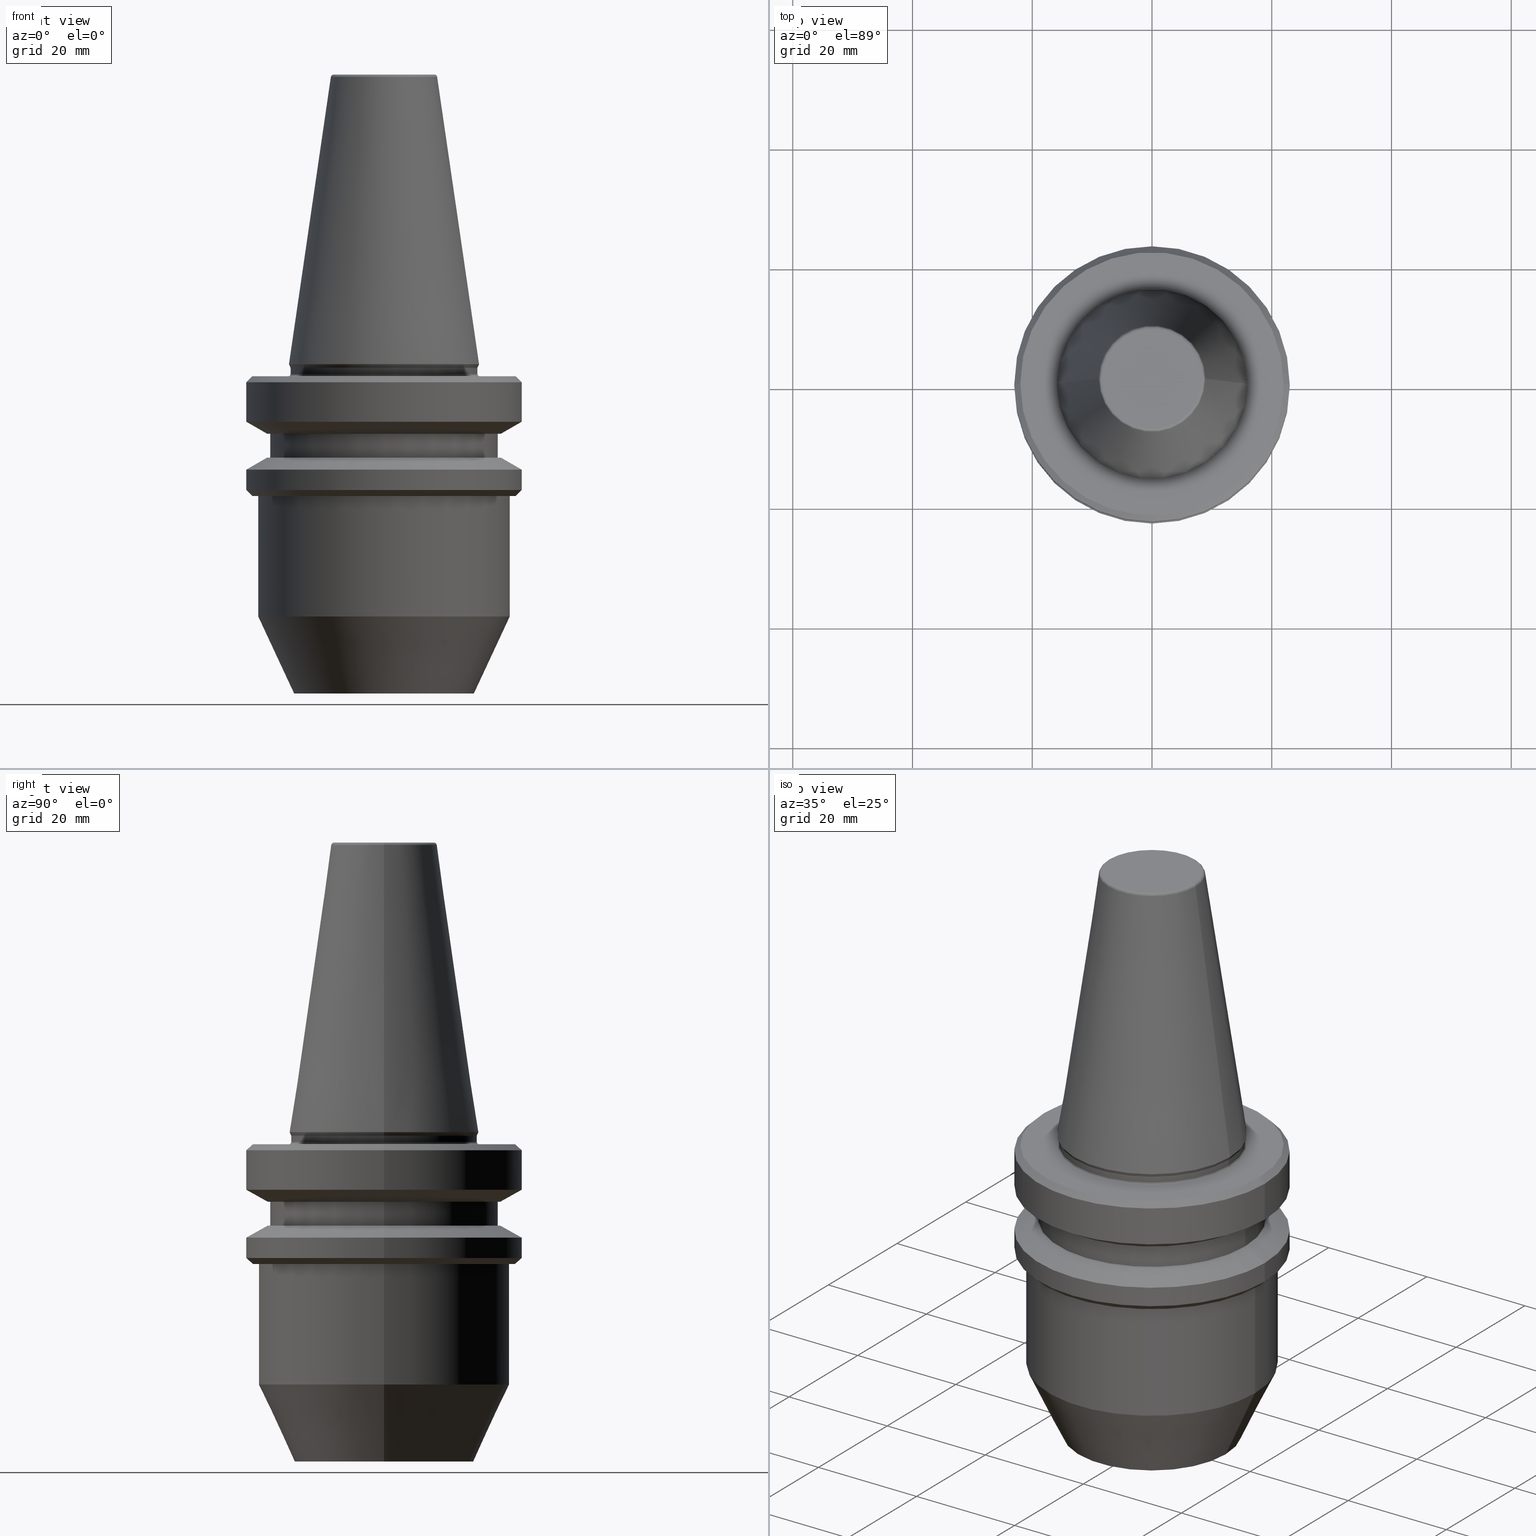
[diagram: canonical four-view strip — front | top / right | iso, engineering-drawing reading convention]
A machine part, canonical four-view strip (front | top / right | iso — engineering-drawing reading convention). The complete STEP part file that produces these views, byte-faithful:
ISO-10303-21;
HEADER;
FILE_DESCRIPTION (( 'STEP AP203' ),
    '1' );
FILE_NAME ('BT30 WE12 055 AD-6.3G15000 SL.STEP',
    '2019-05-22T04:52:18',
    ( '' ),
    ( '' ),
    'SwSTEP 2.0',
    'SolidWorks 2014',
    '' );
FILE_SCHEMA (( 'CONFIG_CONTROL_DESIGN' ));
ENDSEC;

DATA;
#1 = DIRECTION ( 'NONE',  ( -0.0000000000000000000, -0.0000000000000000000, 1.000000000000000000 ) ) ;
#2 = DIRECTION ( 'NONE',  ( 0.0000000000000000000, -0.0000000000000000000, 1.000000000000000000 ) ) ;
#3 = EDGE_LOOP ( 'NONE', ( #344, #434, #918, #743 ) ) ;
#4 = ORIENTED_EDGE ( 'NONE', *, *, #491, .T. ) ;
#5 = LINE ( 'NONE', #34, #941 ) ;
#6 = CARTESIAN_POINT ( 'NONE',  ( 0.0000000000000000000, 0.0000000000000000000, 98.56026596081761700 ) ) ;
#7 = ORIENTED_EDGE ( 'NONE', *, *, #897, .F. ) ;
#8 = CIRCLE ( 'NONE', #421, 23.00000000000085600 ) ;
#9 = CIRCLE ( 'NONE', #876, 23.00000000000002100 ) ;
#10 = DIRECTION ( 'NONE',  ( 0.0000000000000000000, 0.0000000000000000000, -1.000000000000000000 ) ) ;
#11 = AXIS2_PLACEMENT_3D ( 'NONE', #296, #156, #894 ) ;
#12 = DIRECTION ( 'NONE',  ( -0.0000000000000000000, -0.0000000000000000000, 1.000000000000000000 ) ) ;
#13 = EDGE_LOOP ( 'NONE', ( #765, #744, #426, #735 ) ) ;
#14 = CARTESIAN_POINT ( 'NONE',  ( 0.0000000000000000000, 0.0000000000000000000, 98.56026596081761700 ) ) ;
#15 = DIRECTION ( 'NONE',  ( -0.0000000000000000000, -0.0000000000000000000, 1.000000000000000000 ) ) ;
#16 = CARTESIAN_POINT ( 'NONE',  ( -15.00000000000023400, 1.836970198721058400E-015, -54.99999999999961600 ) ) ;
#17 = ADVANCED_FACE ( 'NONE', ( #447 ), #614, .T. ) ;
#18 = AXIS2_PLACEMENT_3D ( 'NONE', #787, #1, #415 ) ;
#19 = DIRECTION ( 'NONE',  ( 1.000000000000000000, 0.0000000000000000000, 0.0000000000000000000 ) ) ;
#20 = AXIS2_PLACEMENT_3D ( 'NONE', #358, #651, #613 ) ;
#21 = EDGE_LOOP ( 'NONE', ( #236, #129, #649, #395 ) ) ;
#22 = CIRCLE ( 'NONE', #705, 19.53610161513874400 ) ;
#23 = DIRECTION ( 'NONE',  ( -0.0000000000000000000, -0.0000000000000000000, 1.000000000000000000 ) ) ;
#24 = AXIS2_PLACEMENT_3D ( 'NONE', #519, #587, #826 ) ;
#25 = ADVANCED_FACE ( 'NONE', ( #637 ), #54, .T. ) ;
#26 = TOROIDAL_SURFACE ( 'NONE', #437, 8.384228427309292200, 0.5000000000004124500 ) ;
#27 = LINE ( 'NONE', #394, #592 ) ;
#28 = ORIENTED_EDGE ( 'NONE', *, *, #416, .F. ) ;
#29 = ADVANCED_FACE ( 'NONE', ( #851 ), #225, .T. ) ;
#30 = DIRECTION ( 'NONE',  ( -1.000000000000000000, 0.0000000000000000000, 0.0000000000000000000 ) ) ;
#31 = DIRECTION ( 'NONE',  ( 0.0000000000000000000, 0.0000000000000000000, -1.000000000000000000 ) ) ;
#32 = CARTESIAN_POINT ( 'NONE',  ( 0.0000000000000000000, 0.0000000000000000000, -1.249000902703301100E-013 ) ) ;
#33 = CYLINDRICAL_SURFACE ( 'NONE', #945, 15.60000000000083300 ) ;
#34 = CARTESIAN_POINT ( 'NONE',  ( 23.00000000000085600, 0.0000000000000000000, 98.56026596081761700 ) ) ;
#35 = CARTESIAN_POINT ( 'NONE',  ( 0.0000000000000000000, 0.0000000000000000000, 98.56026596081761700 ) ) ;
#36 = ORIENTED_EDGE ( 'NONE', *, *, #403, .T. ) ;
#37 = DIRECTION ( 'NONE',  ( 1.000000000000000000, 0.0000000000000000000, 0.0000000000000000000 ) ) ;
#38 = EDGE_CURVE ( 'NONE', #360, #454, #417, .T. ) ;
#39 = AXIS2_PLACEMENT_3D ( 'NONE', #890, #295, #84 ) ;
#40 = CARTESIAN_POINT ( 'NONE',  ( 0.0000000000000000000, 0.0000000000000000000, -42.13295847694266200 ) ) ;
#41 = DIRECTION ( 'NONE',  ( -0.0000000000000000000, -0.0000000000000000000, 1.000000000000000000 ) ) ;
#42 = EDGE_LOOP ( 'NONE', ( #66, #813, #332, #101 ) ) ;
#43 = EDGE_LOOP ( 'NONE', ( #855, #861, #484, #28 ) ) ;
#44 = FACE_BOUND ( 'NONE', #584, .T. ) ;
#45 = DIRECTION ( 'NONE',  ( 1.000000000000000000, 0.0000000000000000000, 0.0000000000000000000 ) ) ;
#46 = ORIENTED_EDGE ( 'NONE', *, *, #549, .T. ) ;
#47 = VERTEX_POINT ( 'NONE', #563 ) ;
#48 = AXIS2_PLACEMENT_3D ( 'NONE', #834, #595, #363 ) ;
#49 = VECTOR ( 'NONE', #302, 1000.000000000000000 ) ;
#50 = CARTESIAN_POINT ( 'NONE',  ( 0.0000000000000000000, 0.0000000000000000000, -0.5897394031394442800 ) ) ;
#51 = DATE_AND_TIME ( #248, #436 ) ;
#52 = EDGE_CURVE ( 'NONE', #544, #683, #250, .T. ) ;
#53 = APPROVAL ( #782, 'UNSPECIFIED' ) ;
#54 = TOROIDAL_SURFACE ( 'NONE', #11, 8.384228427309292200, 0.5000000000004124500 ) ;
#55 = FACE_OUTER_BOUND ( 'NONE', #3, .T. ) ;
#56 = AXIS2_PLACEMENT_3D ( 'NONE', #560, #581, #882 ) ;
#57 = VECTOR ( 'NONE', #678, 1000.000000000000000 ) ;
#58 = EDGE_LOOP ( 'NONE', ( #200, #258, #72, #739 ) ) ;
#59 = CARTESIAN_POINT ( 'NONE',  ( 0.0000000000000000000, 0.0000000000000000000, -22.00000000000062900 ) ) ;
#60 = DIRECTION ( 'NONE',  ( 1.000000000000000000, 0.0000000000000000000, 0.0000000000000000000 ) ) ;
#61 = AXIS2_PLACEMENT_3D ( 'NONE', #752, #470, #810 ) ;
#62 = FACE_OUTER_BOUND ( 'NONE', #529, .T. ) ;
#63 = EDGE_CURVE ( 'NONE', #47, #494, #252, .T. ) ;
#64 = APPROVAL_ROLE ( '' ) ;
#65 = VERTEX_POINT ( 'NONE', #226 ) ;
#66 = ORIENTED_EDGE ( 'NONE', *, *, #549, .F. ) ;
#67 = AXIS2_PLACEMENT_3D ( 'NONE', #40, #659, #949 ) ;
#68 = CIRCLE ( 'NONE', #83, 21.00000000000001800 ) ;
#69 = ADVANCED_BREP_SHAPE_REPRESENTATION ( 'BT30 WE12 055 AD-6.3G15000 SL', ( #359, #238 ), #623 ) ;
#70 = DIRECTION ( 'NONE',  ( 1.000000000000000000, 0.0000000000000000000, 0.0000000000000000000 ) ) ;
#71 = ORIENTED_EDGE ( 'NONE', *, *, #63, .F. ) ;
#72 = ORIENTED_EDGE ( 'NONE', *, *, #605, .T. ) ;
#73 = AXIS2_PLACEMENT_3D ( 'NONE', #260, #638, #723 ) ;
#74 = APPROVAL_DATE_TIME ( #271, #152 ) ;
#75 = FACE_OUTER_BOUND ( 'NONE', #704, .T. ) ;
#76 = ORIENTED_EDGE ( 'NONE', *, *, #728, .F. ) ;
#77 = CIRCLE ( 'NONE', #885, 19.00000000000023800 ) ;
#78 = CC_DESIGN_PERSON_AND_ORGANIZATION_ASSIGNMENT ( #921, #211, ( #205 ) ) ;
#79 = DIRECTION ( 'NONE',  ( -0.8660254037844393700, 1.060575238724907800E-016, 0.4999999999999985000 ) ) ;
#80 = AXIS2_PLACEMENT_3D ( 'NONE', #687, #582, #532 ) ;
#81 = CARTESIAN_POINT ( 'NONE',  ( 0.0000000000000000000, 0.0000000000000000000, 98.56026596081761700 ) ) ;
#82 = FACE_OUTER_BOUND ( 'NONE', #886, .T. ) ;
#83 = AXIS2_PLACEMENT_3D ( 'NONE', #59, #450, #309 ) ;
#84 = DIRECTION ( 'NONE',  ( 1.000000000000000000, 0.0000000000000000000, 0.0000000000000000000 ) ) ;
#85 = VERTEX_POINT ( 'NONE', #525 ) ;
#86 = VERTEX_POINT ( 'NONE', #776 ) ;
#87 = ORIENTED_EDGE ( 'NONE', *, *, #799, .T. ) ;
#88 = CARTESIAN_POINT ( 'NONE',  ( 8.384228427309182100, 0.0000000000000000000, 48.40000000000002000 ) ) ;
#89 = CARTESIAN_POINT ( 'NONE',  ( 0.0000000000000000000, 0.0000000000000000000, -0.5897394031394442800 ) ) ;
#90 = FACE_OUTER_BOUND ( 'NONE', #492, .T. ) ;
#91 = AXIS2_PLACEMENT_3D ( 'NONE', #145, #262, #486 ) ;
#92 = ORIENTED_EDGE ( 'NONE', *, *, #781, .T. ) ;
#93 = ADVANCED_FACE ( 'NONE', ( #442 ), #794, .T. ) ;
#94 = CARTESIAN_POINT ( 'NONE',  ( 8.878994820584161100, 1.515745026156934700E-015, 47.97215411344124200 ) ) ;
#95 = APPROVAL_PERSON_ORGANIZATION ( #297, #152, #438 ) ;
#96 = AXIS2_PLACEMENT_3D ( 'NONE', #672, #218, #507 ) ;
#97 = DIRECTION ( 'NONE',  ( 1.000000000000000000, 0.0000000000000000000, 0.0000000000000000000 ) ) ;
#98 = CIRCLE ( 'NONE', #505, 15.87500000000011500 ) ;
#99 = CARTESIAN_POINT ( 'NONE',  ( -15.60000000000068500, 1.934941942652894900E-015, -1.599999999999934800 ) ) ;
#100 = ADVANCED_FACE ( 'NONE', ( #640 ), #617, .T. ) ;
#101 = ORIENTED_EDGE ( 'NONE', *, *, #355, .F. ) ;
#102 = CYLINDRICAL_SURFACE ( 'NONE', #726, 23.00000000000002100 ) ;
#103 = CARTESIAN_POINT ( 'NONE',  ( -19.53610161513874400, 0.0000000000000000000, -15.60000000000012800 ) ) ;
#104 = EDGE_CURVE ( 'NONE', #531, #357, #419, .T. ) ;
#105 = DIRECTION ( 'NONE',  ( 1.000000000000000000, 0.0000000000000000000, 0.0000000000000000000 ) ) ;
#106 = AXIS2_PLACEMENT_3D ( 'NONE', #818, #508, #128 ) ;
#107 = DIRECTION ( 'NONE',  ( -0.0000000000000000000, -0.0000000000000000000, 1.000000000000000000 ) ) ;
#108 = CARTESIAN_POINT ( 'NONE',  ( -15.00000000000023400, 2.204364238465251200E-015, -54.99999999999961600 ) ) ;
#109 = CIRCLE ( 'NONE', #888, 0.5000000000004098900 ) ;
#110 = COORDINATED_UNIVERSAL_TIME_OFFSET ( 5, 30, .AHEAD. ) ;
#111 = AXIS2_PLACEMENT_3D ( 'NONE', #124, #279, #521 ) ;
#112 = DIRECTION ( 'NONE',  ( 0.8660254037844389300, 1.060575238724907300E-016, -0.4999999999999995000 ) ) ;
#113 = CARTESIAN_POINT ( 'NONE',  ( 15.60000000000083300, 0.0000000000000000000, 98.56026596081761700 ) ) ;
#114 = ORIENTED_EDGE ( 'NONE', *, *, #807, .T. ) ;
#115 = ORIENTED_EDGE ( 'NONE', *, *, #192, .T. ) ;
#116 = ORIENTED_EDGE ( 'NONE', *, *, #192, .F. ) ;
#117 = CARTESIAN_POINT ( 'NONE',  ( 0.0000000000000000000, 0.0000000000000000000, 98.56026596081761700 ) ) ;
#118 = CONICAL_SURFACE ( 'NONE', #516, 15.87500000000011500, 0.1448138461595524200 ) ;
#119 = DIRECTION ( 'NONE',  ( 1.000000000000000000, 0.0000000000000000000, 0.0000000000000000000 ) ) ;
#120 = APPLICATION_PROTOCOL_DEFINITION ( 'international standard', 'config_control_design', 1994, #219 ) ;
#121 = AXIS2_PLACEMENT_3D ( 'NONE', #32, #366, #182 ) ;
#122 = CIRCLE ( 'NONE', #636, 21.99999999999990800 ) ;
#123 = CC_DESIGN_APPROVAL ( #53, ( #770 ) ) ;
#124 = CARTESIAN_POINT ( 'NONE',  ( 0.0000000000000000000, 0.0000000000000000000, -17.59988266494577800 ) ) ;
#125 = CC_DESIGN_APPROVAL ( #786, ( #205 ) ) ;
#126 = FACE_OUTER_BOUND ( 'NONE', #42, .T. ) ;
#127 = ORIENTED_EDGE ( 'NONE', *, *, #562, .F. ) ;
#128 = DIRECTION ( 'NONE',  ( 1.000000000000000000, 0.0000000000000000000, 0.0000000000000000000 ) ) ;
#129 = ORIENTED_EDGE ( 'NONE', *, *, #763, .T. ) ;
#130 = CONICAL_SURFACE ( 'NONE', #478, 15.00000000000023400, 0.4363323129985803800 ) ;
#131 = LOCAL_TIME ( 10, 22, 18.00000000000000000, #337 ) ;
#132 = ORIENTED_EDGE ( 'NONE', *, *, #175, .T. ) ;
#133 = EDGE_CURVE ( 'NONE', #482, #455, #27, .T. ) ;
#134 = EDGE_LOOP ( 'NONE', ( #627, #158, #598, #178 ) ) ;
#135 = CARTESIAN_POINT ( 'NONE',  ( -21.00000000000001800, 2.571758278209444000E-015, 98.56026596081761700 ) ) ;
#136 = VERTEX_POINT ( 'NONE', #280 ) ;
#137 = VERTEX_POINT ( 'NONE', #88 ) ;
#138 = DIRECTION ( 'NONE',  ( -0.0000000000000000000, -0.0000000000000000000, 1.000000000000000000 ) ) ;
#139 = CARTESIAN_POINT ( 'NONE',  ( 0.0000000000000000000, 0.0000000000000000000, -11.59999999999938900 ) ) ;
#140 = PERSON_AND_ORGANIZATION_ROLE ( 'design_supplier' ) ;
#141 = CIRCLE ( 'NONE', #168, 8.878994820584161100 ) ;
#142 = PRODUCT ( 'BT30 WE12 055 AD-6.3G15000 SL', 'BT30 WE12 055 AD-6.3G15000 SL', '', ( #666 ) ) ;
#143 = DIRECTION ( 'NONE',  ( 1.224646799147353200E-016, 1.000000000000000000, 0.0000000000000000000 ) ) ;
#144 = VERTEX_POINT ( 'NONE', #779 ) ;
#145 = CARTESIAN_POINT ( 'NONE',  ( 0.0000000000000000000, 0.0000000000000000000, -11.59999999999938900 ) ) ;
#146 = DIRECTION ( 'NONE',  ( -0.0000000000000000000, -0.0000000000000000000, 1.000000000000000000 ) ) ;
#147 = EDGE_LOOP ( 'NONE', ( #71, #504, #87, #939 ) ) ;
#148 = CARTESIAN_POINT ( 'NONE',  ( 0.0000000000000000000, 19.53610161513941200, -11.59999999999938900 ) ) ;
#149 = CC_DESIGN_DATE_AND_TIME_ASSIGNMENT ( #699, #305, ( #770 ) ) ;
#150 = CARTESIAN_POINT ( 'NONE',  ( 0.0000000000000000000, 0.0000000000000000000, -3.000000000000113700 ) ) ;
#151 = LINE ( 'NONE', #706, #524 ) ;
#152 = APPROVAL ( #874, 'UNSPECIFIED' ) ;
#153 = APPROVAL_DATE_TIME ( #356, #786 ) ;
#154 = ORIENTED_EDGE ( 'NONE', *, *, #104, .T. ) ;
#155 = EDGE_CURVE ( 'NONE', #137, #865, #207, .T. ) ;
#156 = DIRECTION ( 'NONE',  ( -0.0000000000000000000, -0.0000000000000000000, 1.000000000000000000 ) ) ;
#157 = DIRECTION ( 'NONE',  ( 1.000000000000000000, 0.0000000000000000000, 0.0000000000000000000 ) ) ;
#158 = ORIENTED_EDGE ( 'NONE', *, *, #374, .T. ) ;
#159 = CARTESIAN_POINT ( 'NONE',  ( 19.00000000000023800, 0.0000000000000000000, -15.59999999999994800 ) ) ;
#160 = CARTESIAN_POINT ( 'NONE',  ( -23.00000000000002100, 2.816687638038914700E-015, -9.600117335054614300 ) ) ;
#161 = ADVANCED_FACE ( 'NONE', ( #230 ), #439, .T. ) ;
#162 = PLANE ( 'NONE',  #196 ) ;
#163 = CC_DESIGN_SECURITY_CLASSIFICATION ( #770, ( #205 ) ) ;
#164 = ORIENTED_EDGE ( 'NONE', *, *, #799, .F. ) ;
#165 = AXIS2_PLACEMENT_3D ( 'NONE', #50, #721, #545 ) ;
#166 = ORIENTED_EDGE ( 'NONE', *, *, #133, .T. ) ;
#167 = ORIENTED_EDGE ( 'NONE', *, *, #732, .T. ) ;
#168 = AXIS2_PLACEMENT_3D ( 'NONE', #829, #138, #943 ) ;
#169 = ORIENTED_EDGE ( 'NONE', *, *, #791, .F. ) ;
#170 = CARTESIAN_POINT ( 'NONE',  ( 0.0000000000000000000, 15.00000000000023400, -54.99999999999971600 ) ) ;
#171 = EDGE_LOOP ( 'NONE', ( #390, #660, #537, #240 ) ) ;
#172 = ADVANCED_FACE ( 'NONE', ( #824 ), #400, .T. ) ;
#173 = CARTESIAN_POINT ( 'NONE',  ( 0.0000000000000000000, 0.0000000000000000000, -54.99999999999961600 ) ) ;
#174 = CIRCLE ( 'NONE', #830, 19.53610161513941200 ) ;
#175 = EDGE_CURVE ( 'NONE', #494, #144, #9, .T. ) ;
#176 = DIRECTION ( 'NONE',  ( -0.0000000000000000000, -0.0000000000000000000, 1.000000000000000000 ) ) ;
#177 = AXIS2_PLACEMENT_3D ( 'NONE', #180, #840, #381 ) ;
#178 = ORIENTED_EDGE ( 'NONE', *, *, #533, .F. ) ;
#179 = CARTESIAN_POINT ( 'NONE',  ( -21.99999999999990800, 0.0000000000000000000, -2.000000000000001800 ) ) ;
#180 = CARTESIAN_POINT ( 'NONE',  ( 0.0000000000000000000, 0.0000000000000000000, -1.249000902703301100E-013 ) ) ;
#181 = DIRECTION ( 'NONE',  ( 1.000000000000000000, 0.0000000000000000000, 0.0000000000000000000 ) ) ;
#182 = DIRECTION ( 'NONE',  ( 1.000000000000000000, 0.0000000000000000000, 0.0000000000000000000 ) ) ;
#183 = FACE_OUTER_BOUND ( 'NONE', #134, .T. ) ;
#184 = DIRECTION ( 'NONE',  ( 1.000000000000000000, 0.0000000000000000000, 0.0000000000000000000 ) ) ;
#185 = DIRECTION ( 'NONE',  ( -0.0000000000000000000, -0.0000000000000000000, 1.000000000000000000 ) ) ;
#186 = DIRECTION ( 'NONE',  ( -0.0000000000000000000, -0.0000000000000000000, 1.000000000000000000 ) ) ;
#187 = PRODUCT_RELATED_PRODUCT_CATEGORY ( 'detail', '', ( #142 ) ) ;
#188 = ORIENTED_EDGE ( 'NONE', *, *, #763, .F. ) ;
#189 = AXIS2_PLACEMENT_3D ( 'NONE', #481, #919, #692 ) ;
#190 = LINE ( 'NONE', #520, #382 ) ;
#191 = DIRECTION ( 'NONE',  ( 1.000000000000000000, 0.0000000000000000000, 0.0000000000000000000 ) ) ;
#192 = EDGE_CURVE ( 'NONE', #357, #683, #578, .T. ) ;
#193 = DIRECTION ( 'NONE',  ( -0.4226182617406976100, 5.175581015019636600E-017, 0.9063077870366508200 ) ) ;
#194 = CARTESIAN_POINT ( 'NONE',  ( 0.0000000000000000000, 19.53610161513874400, -15.60000000000003700 ) ) ;
#195 = DIRECTION ( 'NONE',  ( -0.0000000000000000000, -0.0000000000000000000, 1.000000000000000000 ) ) ;
#196 = AXIS2_PLACEMENT_3D ( 'NONE', #698, #386, #213 ) ;
#197 = ORIENTED_EDGE ( 'NONE', *, *, #643, .T. ) ;
#198 = ORIENTED_EDGE ( 'NONE', *, *, #317, .F. ) ;
#199 = DIRECTION ( 'NONE',  ( 0.4226182617400864300, 0.0000000000000000000, 0.9063077870369358200 ) ) ;
#200 = ORIENTED_EDGE ( 'NONE', *, *, #446, .F. ) ;
#201 = LINE ( 'NONE', #257, #610 ) ;
#202 = EDGE_LOOP ( 'NONE', ( #724, #518, #898, #915 ) ) ;
#203 = CARTESIAN_POINT ( 'NONE',  ( -22.00000000000041200, 2.755455298081622500E-015, -22.00000000000062900 ) ) ;
#204 = AXIS2_PLACEMENT_3D ( 'NONE', #89, #146, #771 ) ;
#205 = PRODUCT_DEFINITION_FORMATION_WITH_SPECIFIED_SOURCE ( 'ANY', '', #142, .NOT_KNOWN. ) ;
#206 = CIRCLE ( 'NONE', #579, 16.00000000000056800 ) ;
#207 = CIRCLE ( 'NONE', #48, 8.384228427309182100 ) ;
#208 = PERSON_AND_ORGANIZATION_ROLE ( 'creator' ) ;
#209 = EDGE_CURVE ( 'NONE', #136, #566, #857, .T. ) ;
#210 = DIRECTION ( 'NONE',  ( 1.000000000000000000, 0.0000000000000000000, 0.0000000000000000000 ) ) ;
#211 = PERSON_AND_ORGANIZATION_ROLE ( 'creator' ) ;
#212 = FACE_OUTER_BOUND ( 'NONE', #631, .T. ) ;
#213 = DIRECTION ( 'NONE',  ( 1.000000000000000000, 0.0000000000000000000, 0.0000000000000000000 ) ) ;
#214 = DIRECTION ( 'NONE',  ( -1.000000000000000000, 1.224646799147347300E-016, 0.0000000000000000000 ) ) ;
#215 = ORIENTED_EDGE ( 'NONE', *, *, #475, .T. ) ;
#216 = PLANE ( 'NONE',  #96 ) ;
#217 = AXIS2_PLACEMENT_3D ( 'NONE', #170, #2, #571 ) ;
#218 = DIRECTION ( 'NONE',  ( 0.0000000000000000000, 0.0000000000000000000, -1.000000000000000000 ) ) ;
#219 = APPLICATION_CONTEXT ( 'configuration controlled 3d designs of mechanical parts and assemblies' ) ;
#220 = DIRECTION ( 'NONE',  ( -0.0000000000000000000, -0.0000000000000000000, 1.000000000000000000 ) ) ;
#221 = CC_DESIGN_PERSON_AND_ORGANIZATION_ASSIGNMENT ( #847, #208, ( #445 ) ) ;
#222 = ORIENTED_EDGE ( 'NONE', *, *, #568, .F. ) ;
#223 = VECTOR ( 'NONE', #452, 1000.000000000000000 ) ;
#224 = DIRECTION ( 'NONE',  ( -0.0000000000000000000, -0.0000000000000000000, 1.000000000000000000 ) ) ;
#225 = CYLINDRICAL_SURFACE ( 'NONE', #350, 23.00000000000085600 ) ;
#226 = CARTESIAN_POINT ( 'NONE',  ( -19.00000000000023800, 2.326828918380000200E-015, -15.59999999999994800 ) ) ;
#227 = DIRECTION ( 'NONE',  ( 1.000000000000000000, 0.0000000000000000000, 0.0000000000000000000 ) ) ;
#228 = AXIS2_PLACEMENT_3D ( 'NONE', #276, #477, #473 ) ;
#229 = CIRCLE ( 'NONE', #304, 15.00000000000023400 ) ;
#230 = FACE_OUTER_BOUND ( 'NONE', #147, .T. ) ;
#231 = ORIENTED_EDGE ( 'NONE', *, *, #670, .F. ) ;
#232 = CARTESIAN_POINT ( 'NONE',  ( 0.0000000000000000000, 0.0000000000000000000, -22.00000000000062900 ) ) ;
#233 =( LENGTH_UNIT ( ) NAMED_UNIT ( * ) SI_UNIT ( .MILLI., .METRE. ) );
#234 = AXIS2_PLACEMENT_3D ( 'NONE', #502, #325, #256 ) ;
#235 = FACE_OUTER_BOUND ( 'NONE', #43, .T. ) ;
#236 = ORIENTED_EDGE ( 'NONE', *, *, #702, .T. ) ;
#237 = CARTESIAN_POINT ( 'NONE',  ( 0.0000000000000000000, 0.0000000000000000000, -15.59999999999994800 ) ) ;
#238 = AXIS2_PLACEMENT_3D ( 'NONE', #278, #635, #346 ) ;
#239 = ADVANCED_FACE ( 'NONE', ( #448 ), #424, .T. ) ;
#240 = ORIENTED_EDGE ( 'NONE', *, *, #522, .F. ) ;
#241 = CARTESIAN_POINT ( 'NONE',  ( 15.00000000000023400, 0.0000000000000000000, -54.99999999999961600 ) ) ;
#242 = VERTEX_POINT ( 'NONE', #345 ) ;
#243 = CIRCLE ( 'NONE', #916, 15.60000000000068500 ) ;
#244 = ORIENTED_EDGE ( 'NONE', *, *, #543, .F. ) ;
#245 = EDGE_LOOP ( 'NONE', ( #727, #197, #198, #116 ) ) ;
#246 = AXIS2_PLACEMENT_3D ( 'NONE', #318, #143, #214 ) ;
#247 = CONICAL_SURFACE ( 'NONE', #264, 23.00000000000085600, 1.047197551196598300 ) ;
#248 = CALENDAR_DATE ( 2019, 22, 5 ) ;
#249 = ADVANCED_FACE ( 'NONE', ( #622 ), #281, .T. ) ;
#250 = CIRCLE ( 'NONE', #106, 21.00000000000001800 ) ;
#251 = CIRCLE ( 'NONE', #121, 15.87500000000011500 ) ;
#252 = LINE ( 'NONE', #904, #57 ) ;
#253 = AXIS2_PLACEMENT_3D ( 'NONE', #440, #853, #341 ) ;
#254 = DIRECTION ( 'NONE',  ( 1.000000000000000000, 0.0000000000000000000, 0.0000000000000000000 ) ) ;
#255 = DIRECTION ( 'NONE',  ( 0.0000000000000000000, -1.000000000000000000, 0.0000000000000000000 ) ) ;
#256 = DIRECTION ( 'NONE',  ( 1.000000000000000000, 0.0000000000000000000, 0.0000000000000000000 ) ) ;
#257 = CARTESIAN_POINT ( 'NONE',  ( -15.60000000000097800, 1.910449006669990400E-015, -0.5897394031394442800 ) ) ;
#258 = ORIENTED_EDGE ( 'NONE', *, *, #761, .T. ) ;
#259 = CIRCLE ( 'NONE', #443, 19.53610161513874400 ) ;
#260 = CARTESIAN_POINT ( 'NONE',  ( 0.0000000000000000000, 0.0000000000000000000, -22.00000000000062900 ) ) ;
#261 = ORIENTED_EDGE ( 'NONE', *, *, #791, .T. ) ;
#262 = DIRECTION ( 'NONE',  ( -0.0000000000000000000, -0.0000000000000000000, 1.000000000000000000 ) ) ;
#263 = ORIENTED_EDGE ( 'NONE', *, *, #807, .F. ) ;
#264 = AXIS2_PLACEMENT_3D ( 'NONE', #327, #384, #30 ) ;
#265 = CONICAL_SURFACE ( 'NONE', #383, 15.00000000000023400, 0.4363323129985803800 ) ;
#266 = ORIENTED_EDGE ( 'NONE', *, *, #788, .T. ) ;
#267 = ADVANCED_FACE ( 'NONE', ( #82 ), #33, .T. ) ;
#268 = ORIENTED_EDGE ( 'NONE', *, *, #710, .F. ) ;
#269 = CARTESIAN_POINT ( 'NONE',  ( 0.0000000000000000000, 0.0000000000000000000, -17.59988266494577800 ) ) ;
#270 = CARTESIAN_POINT ( 'NONE',  ( 0.0000000000000000000, 0.0000000000000000000, -11.59999999999938900 ) ) ;
#271 = DATE_AND_TIME ( #463, #656 ) ;
#272 = CONICAL_SURFACE ( 'NONE', #860, 23.00000000000002100, 0.7853981633974482800 ) ;
#273 = AXIS2_PLACEMENT_3D ( 'NONE', #734, #369, #97 ) ;
#274 = ORIENTED_EDGE ( 'NONE', *, *, #864, .F. ) ;
#275 = CIRCLE ( 'NONE', #551, 23.00000000000085600 ) ;
#276 = CARTESIAN_POINT ( 'NONE',  ( 0.0000000000000000000, 0.0000000000000000000, -21.00000000000018500 ) ) ;
#277 = DIRECTION ( 'NONE',  ( 1.000000000000000000, 0.0000000000000000000, 0.0000000000000000000 ) ) ;
#278 = CARTESIAN_POINT ( 'NONE',  ( 0.0000000000000000000, 0.0000000000000000000, 0.0000000000000000000 ) ) ;
#279 = DIRECTION ( 'NONE',  ( -0.0000000000000000000, -0.0000000000000000000, 1.000000000000000000 ) ) ;
#280 = CARTESIAN_POINT ( 'NONE',  ( 22.00000000000041200, 0.0000000000000000000, -22.00000000000062900 ) ) ;
#281 = CYLINDRICAL_SURFACE ( 'NONE', #39, 15.60000000000083300 ) ;
#282 = APPROVAL_DATE_TIME ( #476, #53 ) ;
#283 = CC_DESIGN_PERSON_AND_ORGANIZATION_ASSIGNMENT ( #487, #396, ( #142 ) ) ;
#284 = DIRECTION ( 'NONE',  ( -1.000000000000000000, 0.0000000000000000000, 0.0000000000000000000 ) ) ;
#285 = EDGE_CURVE ( 'NONE', #367, #884, #259, .T. ) ;
#286 = VERTEX_POINT ( 'NONE', #815 ) ;
#287 = DIRECTION ( 'NONE',  ( -0.0000000000000000000, -0.0000000000000000000, 1.000000000000000000 ) ) ;
#288 = VERTEX_POINT ( 'NONE', #179 ) ;
#289 = ORIENTED_EDGE ( 'NONE', *, *, #562, .T. ) ;
#290 = CIRCLE ( 'NONE', #228, 23.00000000000085600 ) ;
#291 = DIRECTION ( 'NONE',  ( 1.000000000000000000, 0.0000000000000000000, 0.0000000000000000000 ) ) ;
#292 = ORIENTED_EDGE ( 'NONE', *, *, #820, .T. ) ;
#293 = AXIS2_PLACEMENT_3D ( 'NONE', #828, #612, #488 ) ;
#294 = PLANE ( 'NONE',  #875 ) ;
#295 = DIRECTION ( 'NONE',  ( -0.0000000000000000000, -0.0000000000000000000, 1.000000000000000000 ) ) ;
#296 = CARTESIAN_POINT ( 'NONE',  ( 0.0000000000000000000, 0.0000000000000000000, 47.89999999999960800 ) ) ;
#297 = PERSON_AND_ORGANIZATION ( #646, #685 ) ;
#298 = LINE ( 'NONE', #602, #657 ) ;
#299 = EDGE_LOOP ( 'NONE', ( #333, #789 ) ) ;
#300 = FACE_OUTER_BOUND ( 'NONE', #202, .T. ) ;
#301 = CARTESIAN_POINT ( 'NONE',  ( 0.0000000000000000000, 0.0000000000000000000, -2.000000000000001800 ) ) ;
#302 = DIRECTION ( 'NONE',  ( -0.0000000000000000000, -0.0000000000000000000, 1.000000000000000000 ) ) ;
#303 = DIRECTION ( 'NONE',  ( 0.0000000000000000000, 0.0000000000000000000, -1.000000000000000000 ) ) ;
#304 = AXIS2_PLACEMENT_3D ( 'NONE', #173, #609, #119 ) ;
#305 = DATE_TIME_ROLE ( 'classification_date' ) ;
#306 = FACE_OUTER_BOUND ( 'NONE', #737, .T. ) ;
#307 = DIRECTION ( 'NONE',  ( -0.0000000000000000000, -0.0000000000000000000, 1.000000000000000000 ) ) ;
#308 = APPROVAL_PERSON_ORGANIZATION ( #501, #53, #641 ) ;
#309 = DIRECTION ( 'NONE',  ( 1.000000000000000000, 0.0000000000000000000, 0.0000000000000000000 ) ) ;
#310 = CC_DESIGN_DATE_AND_TIME_ASSIGNMENT ( #51, #621, ( #445 ) ) ;
#311 = DIRECTION ( 'NONE',  ( -0.0000000000000000000, -0.0000000000000000000, 1.000000000000000000 ) ) ;
#312 = ORIENTED_EDGE ( 'NONE', *, *, #817, .T. ) ;
#313 = DIRECTION ( 'NONE',  ( -0.0000000000000000000, -0.0000000000000000000, 1.000000000000000000 ) ) ;
#314 = ORIENTED_EDGE ( 'NONE', *, *, #663, .F. ) ;
#315 = DIRECTION ( 'NONE',  ( -1.000000000000000000, 0.0000000000000000000, -0.0000000000000000000 ) ) ;
#316 = FACE_OUTER_BOUND ( 'NONE', #245, .T. ) ;
#317 = EDGE_CURVE ( 'NONE', #683, #544, #832, .T. ) ;
#318 = CARTESIAN_POINT ( 'NONE',  ( -16.00000000000056800, 1.959434878635834900E-015, -1.599999999999823800 ) ) ;
#319 = ADVANCED_FACE ( 'NONE', ( #235 ), #777, .T. ) ;
#320 = CARTESIAN_POINT ( 'NONE',  ( 15.87500000000011500, 0.0000000000000000000, -1.249000902703301100E-013 ) ) ;
#321 = CC_DESIGN_PERSON_AND_ORGANIZATION_ASSIGNMENT ( #722, #140, ( #205 ) ) ;
#322 = DIRECTION ( 'NONE',  ( 1.000000000000000000, 0.0000000000000000000, 0.0000000000000000000 ) ) ;
#323 = DIRECTION ( 'NONE',  ( -0.0000000000000000000, -0.0000000000000000000, 1.000000000000000000 ) ) ;
#324 = CIRCLE ( 'NONE', #647, 8.384228427309182100 ) ;
#325 = DIRECTION ( 'NONE',  ( -0.0000000000000000000, -0.0000000000000000000, 1.000000000000000000 ) ) ;
#326 = CARTESIAN_POINT ( 'NONE',  ( 21.00000000000001800, 0.0000000000000000000, -22.00000000000062900 ) ) ;
#327 = CARTESIAN_POINT ( 'NONE',  ( 0.0000000000000000000, 0.0000000000000000000, -17.59988266494577800 ) ) ;
#328 = CIRCLE ( 'NONE', #273, 21.00000000000001800 ) ;
#329 = DIRECTION ( 'NONE',  ( -0.0000000000000000000, -0.0000000000000000000, 1.000000000000000000 ) ) ;
#330 = AXIS2_PLACEMENT_3D ( 'NONE', #353, #854, #210 ) ;
#331 = ORIENTED_EDGE ( 'NONE', *, *, #742, .T. ) ;
#332 = ORIENTED_EDGE ( 'NONE', *, *, #547, .T. ) ;
#333 = ORIENTED_EDGE ( 'NONE', *, *, #155, .T. ) ;
#334 = CIRCLE ( 'NONE', #731, 19.00000000000023800 ) ;
#335 = ADVANCED_FACE ( 'NONE', ( #800 ), #118, .T. ) ;
#336 = CARTESIAN_POINT ( 'NONE',  ( -15.87500000000011500, 0.0000000000000000000, -1.249000902703301100E-013 ) ) ;
#337 = COORDINATED_UNIVERSAL_TIME_OFFSET ( 5, 30, .AHEAD. ) ;
#338 = ORIENTED_EDGE ( 'NONE', *, *, #52, .F. ) ;
#339 = CARTESIAN_POINT ( 'NONE',  ( -21.00000000000001800, 2.571758278209444000E-015, -22.00000000000062900 ) ) ;
#340 = CARTESIAN_POINT ( 'NONE',  ( 0.0000000000000000000, 0.0000000000000000000, -17.59988266494577800 ) ) ;
#341 = DIRECTION ( 'NONE',  ( 1.000000000000000000, 0.0000000000000000000, 0.0000000000000000000 ) ) ;
#342 = ORIENTED_EDGE ( 'NONE', *, *, #732, .F. ) ;
#343 = CARTESIAN_POINT ( 'NONE',  ( 0.0000000000000000000, 0.0000000000000000000, 47.89999999999960800 ) ) ;
#344 = ORIENTED_EDGE ( 'NONE', *, *, #446, .T. ) ;
#345 = CARTESIAN_POINT ( 'NONE',  ( -23.00000000000085600, 2.816687638039017300E-015, -21.00000000000018500 ) ) ;
#346 = DIRECTION ( 'NONE',  ( 1.000000000000000000, 0.0000000000000000000, 0.0000000000000000000 ) ) ;
#347 = ORIENTED_EDGE ( 'NONE', *, *, #423, .T. ) ;
#348 = DIRECTION ( 'NONE',  ( -0.0000000000000000000, -0.0000000000000000000, 1.000000000000000000 ) ) ;
#349 = VERTEX_POINT ( 'NONE', #658 ) ;
#350 = AXIS2_PLACEMENT_3D ( 'NONE', #81, #462, #778 ) ;
#351 = EDGE_LOOP ( 'NONE', ( #268, #7 ) ) ;
#352 = ORIENTED_EDGE ( 'NONE', *, *, #922, .F. ) ;
#353 = CARTESIAN_POINT ( 'NONE',  ( 0.0000000000000000000, 0.0000000000000000000, -9.600117335054614300 ) ) ;
#354 = FACE_OUTER_BOUND ( 'NONE', #530, .T. ) ;
#355 = EDGE_CURVE ( 'NONE', #144, #494, #597, .T. ) ;
#356 = DATE_AND_TIME ( #550, #748 ) ;
#357 = VERTEX_POINT ( 'NONE', #548 ) ;
#358 = CARTESIAN_POINT ( 'NONE',  ( -8.384228427309292200, 1.026771850682457400E-015, 47.89999999999960800 ) ) ;
#359 = MANIFOLD_SOLID_BREP ( 'Revolve1', #644 ) ;
#360 = VERTEX_POINT ( 'NONE', #736 ) ;
#361 = DIRECTION ( 'NONE',  ( -0.0000000000000000000, -0.0000000000000000000, 1.000000000000000000 ) ) ;
#362 = ORIENTED_EDGE ( 'NONE', *, *, #451, .F. ) ;
#363 = DIRECTION ( 'NONE',  ( 1.000000000000000000, 0.0000000000000000000, 0.0000000000000000000 ) ) ;
#364 = VERTEX_POINT ( 'NONE', #159 ) ;
#365 = EDGE_LOOP ( 'NONE', ( #650, #565, #907, #408 ) ) ;
#366 = DIRECTION ( 'NONE',  ( -0.0000000000000000000, -0.0000000000000000000, 1.000000000000000000 ) ) ;
#367 = VERTEX_POINT ( 'NONE', #691 ) ;
#368 = ORIENTED_EDGE ( 'NONE', *, *, #496, .T. ) ;
#369 = DIRECTION ( 'NONE',  ( -0.0000000000000000000, -0.0000000000000000000, 1.000000000000000000 ) ) ;
#370 = CARTESIAN_POINT ( 'NONE',  ( 0.0000000000000000000, 0.0000000000000000000, 98.56026596081761700 ) ) ;
#371 = CONICAL_SURFACE ( 'NONE', #676, 19.53610161513941200, 1.047197551196599400 ) ;
#372 = ADVANCED_FACE ( 'NONE', ( #62 ), #404, .F. ) ;
#373 = ORIENTED_EDGE ( 'NONE', *, *, #543, .T. ) ;
#374 = EDGE_CURVE ( 'NONE', #367, #570, #887, .T. ) ;
#375 = CARTESIAN_POINT ( 'NONE',  ( 0.0000000000000000000, 0.0000000000000000000, -3.000000000000113700 ) ) ;
#376 = DIRECTION ( 'NONE',  ( -0.8660254037844389300, 0.0000000000000000000, -0.4999999999999995000 ) ) ;
#377 = FACE_BOUND ( 'NONE', #429, .T. ) ;
#378 = CYLINDRICAL_SURFACE ( 'NONE', #679, 19.00000000000023800 ) ;
#379 = AXIS2_PLACEMENT_3D ( 'NONE', #194, #303, #315 ) ;
#380 = ADVANCED_FACE ( 'NONE', ( #316 ), #265, .T. ) ;
#381 = DIRECTION ( 'NONE',  ( -1.000000000000000000, 0.0000000000000000000, 0.0000000000000000000 ) ) ;
#382 = VECTOR ( 'NONE', #185, 1000.000000000000000 ) ;
#383 = AXIS2_PLACEMENT_3D ( 'NONE', #389, #868, #814 ) ;
#384 = DIRECTION ( 'NONE',  ( 0.0000000000000000000, 0.0000000000000000000, -1.000000000000000000 ) ) ;
#385 = ORIENTED_EDGE ( 'NONE', *, *, #491, .F. ) ;
#386 = DIRECTION ( 'NONE',  ( 0.0000000000000000000, -0.0000000000000000000, 1.000000000000000000 ) ) ;
#387 = ADVANCED_FACE ( 'NONE', ( #90 ), #681, .T. ) ;
#388 = DIRECTION ( 'NONE',  ( -0.0000000000000000000, -0.0000000000000000000, 1.000000000000000000 ) ) ;
#389 = CARTESIAN_POINT ( 'NONE',  ( 0.0000000000000000000, 0.0000000000000000000, -54.99999999999961600 ) ) ;
#390 = ORIENTED_EDGE ( 'NONE', *, *, #398, .F. ) ;
#391 = CARTESIAN_POINT ( 'NONE',  ( 0.0000000000000000000, 0.0000000000000000000, -2.000000000000001800 ) ) ;
#392 = CARTESIAN_POINT ( 'NONE',  ( -15.87500000000011500, 1.944126793646437000E-015, -1.249000902703301100E-013 ) ) ;
#393 = LINE ( 'NONE', #831, #769 ) ;
#394 = CARTESIAN_POINT ( 'NONE',  ( -19.53610161513941200, 2.392482431079791800E-015, -11.59999999999938900 ) ) ;
#395 = ORIENTED_EDGE ( 'NONE', *, *, #496, .F. ) ;
#396 = PERSON_AND_ORGANIZATION_ROLE ( 'design_owner' ) ;
#397 = VECTOR ( 'NONE', #193, 1000.000000000000000 ) ;
#398 = EDGE_CURVE ( 'NONE', #544, #523, #654, .T. ) ;
#399 = CARTESIAN_POINT ( 'NONE',  ( -21.00000000000001800, 2.571758278209443600E-015, -42.13295847694266200 ) ) ;
#400 = CYLINDRICAL_SURFACE ( 'NONE', #912, 23.00000000000002100 ) ;
#401 = ADVANCED_FACE ( 'NONE', ( #841 ), #216, .F. ) ;
#402 = ADVANCED_FACE ( 'NONE', ( #866, #431 ), #294, .F. ) ;
#403 = EDGE_CURVE ( 'NONE', #938, #523, #68, .T. ) ;
#404 = TOROIDAL_SURFACE ( 'NONE', #253, 16.00000000000056800, 0.3999999999998848400 ) ;
#405 = CARTESIAN_POINT ( 'NONE',  ( 0.0000000000000000000, 0.0000000000000000000, -11.59999999999938900 ) ) ;
#406 = EDGE_LOOP ( 'NONE', ( #762, #46, #780, #586 ) ) ;
#407 = ADVANCED_FACE ( 'NONE', ( #628 ), #378, .T. ) ;
#408 = ORIENTED_EDGE ( 'NONE', *, *, #864, .T. ) ;
#409 = CARTESIAN_POINT ( 'NONE',  ( -22.00000000000041200, 2.694222958124227300E-015, -22.00000000000062900 ) ) ;
#410 = ORIENTED_EDGE ( 'NONE', *, *, #285, .T. ) ;
#411 = DIRECTION ( 'NONE',  ( -1.000000000000000000, 0.0000000000000000000, 0.0000000000000000000 ) ) ;
#412 = ORIENTED_EDGE ( 'NONE', *, *, #38, .T. ) ;
#413 = FACE_OUTER_BOUND ( 'NONE', #542, .T. ) ;
#414 = EDGE_CURVE ( 'NONE', #729, #914, #243, .T. ) ;
#415 = DIRECTION ( 'NONE',  ( 1.000000000000000000, 0.0000000000000000000, 0.0000000000000000000 ) ) ;
#416 = EDGE_CURVE ( 'NONE', #242, #566, #290, .T. ) ;
#417 = LINE ( 'NONE', #336, #822 ) ;
#418 = TOROIDAL_SURFACE ( 'NONE', #234, 16.00000000000056800, 0.3999999999998848400 ) ;
#419 = CIRCLE ( 'NONE', #526, 15.00000000000023400 ) ;
#420 = ORIENTED_EDGE ( 'NONE', *, *, #495, .F. ) ;
#421 = AXIS2_PLACEMENT_3D ( 'NONE', #688, #668, #653 ) ;
#422 = ADVANCED_FACE ( 'NONE', ( #212, #44 ), #801, .F. ) ;
#423 = EDGE_CURVE ( 'NONE', #729, #677, #512, .T. ) ;
#424 = CONICAL_SURFACE ( 'NONE', #812, 22.00000000000041200, 0.7853981633974482800 ) ;
#425 = AXIS2_PLACEMENT_3D ( 'NONE', #539, #15, #60 ) ;
#426 = ORIENTED_EDGE ( 'NONE', *, *, #728, .T. ) ;
#427 = CARTESIAN_POINT ( 'NONE',  ( 23.00000000000002100, 0.0000000000000000000, 98.56026596081761700 ) ) ;
#428 = DIRECTION ( 'NONE',  ( 0.0000000000000000000, 0.0000000000000000000, -1.000000000000000000 ) ) ;
#429 = EDGE_LOOP ( 'NONE', ( #811, #430 ) ) ;
#430 = ORIENTED_EDGE ( 'NONE', *, *, #693, .F. ) ;
#431 = FACE_OUTER_BOUND ( 'NONE', #652, .T. ) ;
#432 = AXIS2_PLACEMENT_3D ( 'NONE', #270, #937, #619 ) ;
#433 = ORIENTED_EDGE ( 'NONE', *, *, #827, .F. ) ;
#434 = ORIENTED_EDGE ( 'NONE', *, *, #922, .T. ) ;
#435 = CIRCLE ( 'NONE', #902, 15.60000000000068500 ) ;
#436 = LOCAL_TIME ( 10, 22, 18.00000000000000000, #634 ) ;
#437 = AXIS2_PLACEMENT_3D ( 'NONE', #343, #224, #517 ) ;
#438 = APPROVAL_ROLE ( '' ) ;
#439 = CONICAL_SURFACE ( 'NONE', #558, 23.00000000000002100, 0.7853981633974482800 ) ;
#440 = CARTESIAN_POINT ( 'NONE',  ( 0.0000000000000000000, 0.0000000000000000000, -1.599999999999823800 ) ) ;
#441 = FACE_OUTER_BOUND ( 'NONE', #838, .T. ) ;
#442 = FACE_OUTER_BOUND ( 'NONE', #365, .T. ) ;
#443 = AXIS2_PLACEMENT_3D ( 'NONE', #515, #696, #184 ) ;
#444 = DIRECTION ( 'NONE',  ( -0.0000000000000000000, -0.0000000000000000000, 1.000000000000000000 ) ) ;
#445 = PRODUCT_DEFINITION ( 'UNKNOWN', '', #205, #928 ) ;
#446 = EDGE_CURVE ( 'NONE', #569, #360, #141, .T. ) ;
#447 = FACE_OUTER_BOUND ( 'NONE', #630, .T. ) ;
#448 = FACE_OUTER_BOUND ( 'NONE', #604, .T. ) ;
#449 = DIRECTION ( 'NONE',  ( 0.0000000000000000000, -0.0000000000000000000, 1.000000000000000000 ) ) ;
#450 = DIRECTION ( 'NONE',  ( -0.0000000000000000000, -0.0000000000000000000, 1.000000000000000000 ) ) ;
#451 = EDGE_CURVE ( 'NONE', #865, #137, #324, .T. ) ;
#452 = DIRECTION ( 'NONE',  ( -0.0000000000000000000, -0.0000000000000000000, 1.000000000000000000 ) ) ;
#453 = ORIENTED_EDGE ( 'NONE', *, *, #781, .F. ) ;
#454 = VERTEX_POINT ( 'NONE', #392 ) ;
#455 = VERTEX_POINT ( 'NONE', #160 ) ;
#456 = EDGE_CURVE ( 'NONE', #288, #47, #122, .T. ) ;
#457 = CARTESIAN_POINT ( 'NONE',  ( 0.0000000000000000000, 0.0000000000000000000, -1.249000902703301100E-013 ) ) ;
#458 = VECTOR ( 'NONE', #718, 1000.000000000000000 ) ;
#459 = EDGE_CURVE ( 'NONE', #455, #555, #892, .T. ) ;
#460 = ORIENTED_EDGE ( 'NONE', *, *, #809, .F. ) ;
#461 = DIRECTION ( 'NONE',  ( 1.000000000000000000, 0.0000000000000000000, 0.0000000000000000000 ) ) ;
#462 = DIRECTION ( 'NONE',  ( -0.0000000000000000000, -0.0000000000000000000, 1.000000000000000000 ) ) ;
#463 = CALENDAR_DATE ( 2019, 22, 5 ) ;
#464 = LINE ( 'NONE', #490, #848 ) ;
#465 = AXIS2_PLACEMENT_3D ( 'NONE', #340, #741, #284 ) ;
#466 = ORIENTED_EDGE ( 'NONE', *, *, #714, .T. ) ;
#467 = CIRCLE ( 'NONE', #500, 21.99999999999990800 ) ;
#468 = DIRECTION ( 'NONE',  ( 1.000000000000000000, 0.0000000000000000000, 0.0000000000000000000 ) ) ;
#469 = EDGE_CURVE ( 'NONE', #767, #286, #686, .T. ) ;
#470 = DIRECTION ( 'NONE',  ( -0.0000000000000000000, -0.0000000000000000000, 1.000000000000000000 ) ) ;
#471 = CIRCLE ( 'NONE', #111, 23.00000000000085600 ) ;
#472 = ADVANCED_FACE ( 'NONE', ( #489 ), #272, .T. ) ;
#473 = DIRECTION ( 'NONE',  ( 1.000000000000000000, 0.0000000000000000000, 0.0000000000000000000 ) ) ;
#474 = VECTOR ( 'NONE', #682, 1000.000000000000000 ) ;
#475 = EDGE_CURVE ( 'NONE', #65, #85, #298, .T. ) ;
#476 = DATE_AND_TIME ( #673, #879 ) ;
#477 = DIRECTION ( 'NONE',  ( -0.0000000000000000000, -0.0000000000000000000, 1.000000000000000000 ) ) ;
#478 = AXIS2_PLACEMENT_3D ( 'NONE', #536, #307, #821 ) ;
#479 = ORIENTED_EDGE ( 'NONE', *, *, #568, .T. ) ;
#480 =( NAMED_UNIT ( * ) SI_UNIT ( $, .STERADIAN. ) SOLID_ANGLE_UNIT ( ) );
#481 = CARTESIAN_POINT ( 'NONE',  ( 0.0000000000000000000, 0.0000000000000000000, -22.00000000000062900 ) ) ;
#482 = VERTEX_POINT ( 'NONE', #596 ) ;
#483 = VECTOR ( 'NONE', #112, 1000.000000000000000 ) ;
#484 = ORIENTED_EDGE ( 'NONE', *, *, #209, .T. ) ;
#485 = CARTESIAN_POINT ( 'NONE',  ( 19.53610161513941200, 0.0000000000000000000, -11.59999999999938900 ) ) ;
#486 = DIRECTION ( 'NONE',  ( 1.000000000000000000, 0.0000000000000000000, 0.0000000000000000000 ) ) ;
#487 = PERSON_AND_ORGANIZATION ( #646, #685 ) ;
#488 = DIRECTION ( 'NONE',  ( 1.000000000000000000, 0.0000000000000000000, 0.0000000000000000000 ) ) ;
#489 = FACE_OUTER_BOUND ( 'NONE', #837, .T. ) ;
#490 = CARTESIAN_POINT ( 'NONE',  ( 15.60000000000097800, 0.0000000000000000000, -0.5897394031394442800 ) ) ;
#491 = EDGE_CURVE ( 'NONE', #454, #690, #98, .T. ) ;
#492 = EDGE_LOOP ( 'NONE', ( #312, #215, #222, #76 ) ) ;
#493 = VECTOR ( 'NONE', #376, 1000.000000000000000 ) ;
#494 = VERTEX_POINT ( 'NONE', #835 ) ;
#495 = EDGE_CURVE ( 'NONE', #729, #286, #871, .T. ) ;
#496 = EDGE_CURVE ( 'NONE', #677, #690, #464, .T. ) ;
#497 = DIRECTION ( 'NONE',  ( -0.0000000000000000000, -0.0000000000000000000, 1.000000000000000000 ) ) ;
#498 = EDGE_LOOP ( 'NONE', ( #36, #867 ) ) ;
#499 = CIRCLE ( 'NONE', #756, 8.878994820584161100 ) ;
#500 = AXIS2_PLACEMENT_3D ( 'NONE', #948, #323, #19 ) ;
#501 = PERSON_AND_ORGANIZATION ( #646, #685 ) ;
#502 = CARTESIAN_POINT ( 'NONE',  ( 0.0000000000000000000, 0.0000000000000000000, -1.599999999999823800 ) ) ;
#503 = EDGE_CURVE ( 'NONE', #85, #86, #913, .T. ) ;
#504 = ORIENTED_EDGE ( 'NONE', *, *, #456, .F. ) ;
#505 = AXIS2_PLACEMENT_3D ( 'NONE', #858, #23, #45 ) ;
#506 = ORIENTED_EDGE ( 'NONE', *, *, #667, .T. ) ;
#507 = DIRECTION ( 'NONE',  ( -1.000000000000000000, 0.0000000000000000000, -0.0000000000000000000 ) ) ;
#508 = DIRECTION ( 'NONE',  ( -0.0000000000000000000, -0.0000000000000000000, 1.000000000000000000 ) ) ;
#509 = PRODUCT_DEFINITION_SHAPE ( 'NONE', 'NONE',  #445 ) ;
#510 = CARTESIAN_POINT ( 'NONE',  ( 23.00000000000085600, 0.0000000000000000000, -17.59988266494577800 ) ) ;
#511 = CARTESIAN_POINT ( 'NONE',  ( 0.0000000000000000000, 0.0000000000000000000, -15.60000000000012800 ) ) ;
#512 = LINE ( 'NONE', #113, #911 ) ;
#513 = LINE ( 'NONE', #583, #895 ) ;
#514 = ORIENTED_EDGE ( 'NONE', *, *, #720, .F. ) ;
#515 = CARTESIAN_POINT ( 'NONE',  ( 0.0000000000000000000, 0.0000000000000000000, -15.60000000000012800 ) ) ;
#516 = AXIS2_PLACEMENT_3D ( 'NONE', #457, #10, #411 ) ;
#517 = DIRECTION ( 'NONE',  ( 1.000000000000000000, 0.0000000000000000000, 0.0000000000000000000 ) ) ;
#518 = ORIENTED_EDGE ( 'NONE', *, *, #398, .T. ) ;
#519 = CARTESIAN_POINT ( 'NONE',  ( 16.00000000000056800, 0.0000000000000000000, -1.599999999999823800 ) ) ;
#520 = CARTESIAN_POINT ( 'NONE',  ( 21.00000000000001800, 0.0000000000000000000, 98.56026596081761700 ) ) ;
#521 = DIRECTION ( 'NONE',  ( 1.000000000000000000, 0.0000000000000000000, 0.0000000000000000000 ) ) ;
#522 = EDGE_CURVE ( 'NONE', #523, #938, #328, .T. ) ;
#523 = VERTEX_POINT ( 'NONE', #339 ) ;
#524 = VECTOR ( 'NONE', #785, 1000.000000000000000 ) ;
#525 = CARTESIAN_POINT ( 'NONE',  ( -19.00000000000023800, 2.326828918380000200E-015, -11.59999999999938900 ) ) ;
#526 = AXIS2_PLACEMENT_3D ( 'NONE', #632, #899, #833 ) ;
#527 = PERSON_AND_ORGANIZATION ( #646, #685 ) ;
#528 = CARTESIAN_POINT ( 'NONE',  ( 23.00000000000085600, 0.0000000000000000000, -21.00000000000018500 ) ) ;
#529 = EDGE_LOOP ( 'NONE', ( #825, #844, #772, #506 ) ) ;
#530 = EDGE_LOOP ( 'NONE', ( #589, #154, #115, #338 ) ) ;
#531 = VERTEX_POINT ( 'NONE', #108 ) ;
#532 = DIRECTION ( 'NONE',  ( 1.000000000000000000, 0.0000000000000000000, 0.0000000000000000000 ) ) ;
#533 = EDGE_CURVE ( 'NONE', #884, #655, #689, .T. ) ;
#534 = DIRECTION ( 'NONE',  ( 1.000000000000000000, 0.0000000000000000000, 0.0000000000000000000 ) ) ;
#535 = AXIS2_PLACEMENT_3D ( 'NONE', #881, #329, #322 ) ;
#536 = CARTESIAN_POINT ( 'NONE',  ( 0.0000000000000000000, 0.0000000000000000000, -54.99999999999961600 ) ) ;
#537 = ORIENTED_EDGE ( 'NONE', *, *, #917, .T. ) ;
#538 = ADVANCED_FACE ( 'NONE', ( #126 ), #102, .T. ) ;
#539 = CARTESIAN_POINT ( 'NONE',  ( 0.0000000000000000000, 0.0000000000000000000, -15.59999999999994800 ) ) ;
#540 = ORIENTED_EDGE ( 'NONE', *, *, #809, .T. ) ;
#541 = CARTESIAN_POINT ( 'NONE',  ( 0.0000000000000000000, 0.0000000000000000000, -1.599999999999934800 ) ) ;
#542 = EDGE_LOOP ( 'NONE', ( #701, #261, #114, #806 ) ) ;
#543 = EDGE_CURVE ( 'NONE', #717, #482, #711, .T. ) ;
#544 = VERTEX_POINT ( 'NONE', #399 ) ;
#545 = DIRECTION ( 'NONE',  ( 1.000000000000000000, 0.0000000000000000000, 0.0000000000000000000 ) ) ;
#546 = VECTOR ( 'NONE', #846, 1000.000000000000000 ) ;
#547 = EDGE_CURVE ( 'NONE', #555, #494, #873, .T. ) ;
#548 = CARTESIAN_POINT ( 'NONE',  ( 15.00000000000023400, 0.0000000000000000000, -54.99999999999961600 ) ) ;
#549 = EDGE_CURVE ( 'NONE', #455, #144, #513, .T. ) ;
#550 = CALENDAR_DATE ( 2019, 22, 5 ) ;
#551 = AXIS2_PLACEMENT_3D ( 'NONE', #269, #41, #661 ) ;
#552 = ADVANCED_FACE ( 'NONE', ( #300 ), #639, .T. ) ;
#553 = CARTESIAN_POINT ( 'NONE',  ( 8.384228427309292200, 0.0000000000000000000, 47.89999999999960800 ) ) ;
#554 = CARTESIAN_POINT ( 'NONE',  ( -23.00000000000085600, 2.816687638039017300E-015, 98.56026596081761700 ) ) ;
#555 = VERTEX_POINT ( 'NONE', #859 ) ;
#556 = CARTESIAN_POINT ( 'NONE',  ( 0.0000000000000000000, 0.0000000000000000000, 48.40000000000002000 ) ) ;
#557 = DIRECTION ( 'NONE',  ( 1.000000000000000000, 0.0000000000000000000, 0.0000000000000000000 ) ) ;
#558 = AXIS2_PLACEMENT_3D ( 'NONE', #150, #792, #708 ) ;
#559 = ADVANCED_FACE ( 'NONE', ( #441 ), #740, .F. ) ;
#560 = CARTESIAN_POINT ( 'NONE',  ( 0.0000000000000000000, 0.0000000000000000000, 98.56026596081761700 ) ) ;
#561 =( NAMED_UNIT ( * ) PLANE_ANGLE_UNIT ( ) SI_UNIT ( $, .RADIAN. ) );
#562 = EDGE_CURVE ( 'NONE', #47, #288, #467, .T. ) ;
#563 = CARTESIAN_POINT ( 'NONE',  ( 21.99999999999990800, 2.755455298081540000E-015, -2.000000000000001800 ) ) ;
#564 = CARTESIAN_POINT ( 'NONE',  ( 0.0000000000000000000, 0.0000000000000000000, 47.97215411344124200 ) ) ;
#565 = ORIENTED_EDGE ( 'NONE', *, *, #742, .F. ) ;
#566 = VERTEX_POINT ( 'NONE', #528 ) ;
#567 = ORIENTED_EDGE ( 'NONE', *, *, #710, .T. ) ;
#568 = EDGE_CURVE ( 'NONE', #86, #85, #77, .T. ) ;
#569 = VERTEX_POINT ( 'NONE', #94 ) ;
#570 = VERTEX_POINT ( 'NONE', #510 ) ;
#571 = DIRECTION ( 'NONE',  ( 1.000000000000000000, 0.0000000000000000000, 0.0000000000000000000 ) ) ;
#572 = CARTESIAN_POINT ( 'NONE',  ( 0.0000000000000000000, 0.0000000000000000000, -1.599999999999934800 ) ) ;
#573 = LINE ( 'NONE', #409, #546 ) ;
#574 = EDGE_LOOP ( 'NONE', ( #352, #802, #936, #362 ) ) ;
#575 = ADVANCED_FACE ( 'NONE', ( #823, #852 ), #162, .F. ) ;
#576 = AXIS2_PLACEMENT_3D ( 'NONE', #14, #348, #601 ) ;
#577 = CIRCLE ( 'NONE', #80, 23.00000000000002100 ) ;
#578 = LINE ( 'NONE', #241, #474 ) ;
#579 = AXIS2_PLACEMENT_3D ( 'NONE', #301, #804, #291 ) ;
#580 = CARTESIAN_POINT ( 'NONE',  ( 22.00000000000041200, 0.0000000000000000000, -22.00000000000062900 ) ) ;
#581 = DIRECTION ( 'NONE',  ( -0.0000000000000000000, -0.0000000000000000000, 1.000000000000000000 ) ) ;
#582 = DIRECTION ( 'NONE',  ( -0.0000000000000000000, -0.0000000000000000000, 1.000000000000000000 ) ) ;
#583 = CARTESIAN_POINT ( 'NONE',  ( -23.00000000000002100, 2.816687638038915100E-015, 98.56026596081761700 ) ) ;
#584 = EDGE_LOOP ( 'NONE', ( #479, #923 ) ) ;
#585 = EDGE_CURVE ( 'NONE', #570, #655, #275, .T. ) ;
#586 = ORIENTED_EDGE ( 'NONE', *, *, #547, .F. ) ;
#587 = DIRECTION ( 'NONE',  ( 0.0000000000000000000, -1.000000000000000000, 0.0000000000000000000 ) ) ;
#588 = CONICAL_SURFACE ( 'NONE', #594, 15.60000000000097800, 0.4363323129979060400 ) ;
#589 = ORIENTED_EDGE ( 'NONE', *, *, #643, .F. ) ;
#590 = DIRECTION ( 'NONE',  ( -0.0000000000000000000, -0.0000000000000000000, 1.000000000000000000 ) ) ;
#591 = LINE ( 'NONE', #16, #397 ) ;
#592 = VECTOR ( 'NONE', #79, 1000.000000000000100 ) ;
#593 = ORIENTED_EDGE ( 'NONE', *, *, #670, .T. ) ;
#594 = AXIS2_PLACEMENT_3D ( 'NONE', #940, #669, #277 ) ;
#595 = DIRECTION ( 'NONE',  ( -0.0000000000000000000, -0.0000000000000000000, 1.000000000000000000 ) ) ;
#596 = CARTESIAN_POINT ( 'NONE',  ( -19.53610161513941200, 2.604585034559353400E-015, -11.59999999999938900 ) ) ;
#597 = CIRCLE ( 'NONE', #18, 23.00000000000002100 ) ;
#598 = ORIENTED_EDGE ( 'NONE', *, *, #585, .T. ) ;
#599 = DIRECTION ( 'NONE',  ( 1.000000000000000000, 0.0000000000000000000, 0.0000000000000000000 ) ) ;
#600 = CARTESIAN_POINT ( 'NONE',  ( 19.00000000000023800, 0.0000000000000000000, 98.56026596081761700 ) ) ;
#601 = DIRECTION ( 'NONE',  ( 1.000000000000000000, 0.0000000000000000000, 0.0000000000000000000 ) ) ;
#602 = CARTESIAN_POINT ( 'NONE',  ( -19.00000000000023800, 2.326828918380000200E-015, 98.56026596081761700 ) ) ;
#603 = ORIENTED_EDGE ( 'NONE', *, *, #104, .F. ) ;
#604 = EDGE_LOOP ( 'NONE', ( #567, #266, #231, #680 ) ) ;
#605 = EDGE_CURVE ( 'NONE', #690, #454, #251, .T. ) ;
#606 = CARTESIAN_POINT ( 'NONE',  ( 21.00000000000001800, 0.0000000000000000000, -42.13295847694266200 ) ) ;
#607 = PERSON_AND_ORGANIZATION_ROLE ( 'classification_officer' ) ;
#608 = EDGE_LOOP ( 'NONE', ( #342, #292, #872, #420 ) ) ;
#609 = DIRECTION ( 'NONE',  ( -0.0000000000000000000, -0.0000000000000000000, 1.000000000000000000 ) ) ;
#610 = VECTOR ( 'NONE', #856, 1000.000000000000000 ) ;
#611 = APPROVAL_PERSON_ORGANIZATION ( #819, #786, #64 ) ;
#612 = DIRECTION ( 'NONE',  ( -0.0000000000000000000, -0.0000000000000000000, 1.000000000000000000 ) ) ;
#613 = DIRECTION ( 'NONE',  ( -1.000000000000000000, 1.224646799147351000E-016, 0.0000000000000000000 ) ) ;
#614 = CONICAL_SURFACE ( 'NONE', #535, 19.53610161513941200, 1.047197551196599400 ) ;
#615 = FACE_OUTER_BOUND ( 'NONE', #608, .T. ) ;
#616 = CARTESIAN_POINT ( 'NONE',  ( -23.00000000000085600, 0.0000000000000000000, -17.59988266494577800 ) ) ;
#617 = CYLINDRICAL_SURFACE ( 'NONE', #797, 21.00000000000001800 ) ;
#618 = ORIENTED_EDGE ( 'NONE', *, *, #667, .F. ) ;
#619 = DIRECTION ( 'NONE',  ( 1.000000000000000000, 0.0000000000000000000, 0.0000000000000000000 ) ) ;
#620 = DIRECTION ( 'NONE',  ( 1.000000000000000000, 0.0000000000000000000, 0.0000000000000000000 ) ) ;
#621 = DATE_TIME_ROLE ( 'creation_date' ) ;
#622 = FACE_OUTER_BOUND ( 'NONE', #903, .T. ) ;
#623 =( GEOMETRIC_REPRESENTATION_CONTEXT ( 3 ) GLOBAL_UNCERTAINTY_ASSIGNED_CONTEXT ( ( #796 ) ) GLOBAL_UNIT_ASSIGNED_CONTEXT ( ( #233, #561, #480 ) ) REPRESENTATION_CONTEXT ( 'NONE', 'WORKASPACE' ) );
#624 = ADVANCED_FACE ( 'NONE', ( #615 ), #418, .F. ) ;
#625 = EDGE_LOOP ( 'NONE', ( #331, #410 ) ) ;
#626 = CARTESIAN_POINT ( 'NONE',  ( 19.53610161513941200, 0.0000000000000000000, -11.59999999999938900 ) ) ;
#627 = ORIENTED_EDGE ( 'NONE', *, *, #285, .F. ) ;
#628 = FACE_OUTER_BOUND ( 'NONE', #13, .T. ) ;
#629 = ADVANCED_FACE ( 'NONE', ( #55 ), #26, .T. ) ;
#630 = EDGE_LOOP ( 'NONE', ( #373, #166, #514, #263 ) ) ;
#631 = EDGE_LOOP ( 'NONE', ( #244, #169 ) ) ;
#632 = CARTESIAN_POINT ( 'NONE',  ( 0.0000000000000000000, 0.0000000000000000000, -54.99999999999961600 ) ) ;
#633 = LINE ( 'NONE', #554, #49 ) ;
#634 = COORDINATED_UNIVERSAL_TIME_OFFSET ( 5, 30, .AHEAD. ) ;
#635 = DIRECTION ( 'NONE',  ( 0.0000000000000000000, 0.0000000000000000000, 1.000000000000000000 ) ) ;
#636 = AXIS2_PLACEMENT_3D ( 'NONE', #391, #842, #557 ) ;
#637 = FACE_OUTER_BOUND ( 'NONE', #574, .T. ) ;
#638 = DIRECTION ( 'NONE',  ( -0.0000000000000000000, -0.0000000000000000000, 1.000000000000000000 ) ) ;
#639 = CYLINDRICAL_SURFACE ( 'NONE', #576, 21.00000000000001800 ) ;
#640 = FACE_OUTER_BOUND ( 'NONE', #171, .T. ) ;
#641 = APPROVAL_ROLE ( '' ) ;
#642 = AXIS2_PLACEMENT_3D ( 'NONE', #148, #449, #764 ) ;
#643 = EDGE_CURVE ( 'NONE', #531, #544, #591, .T. ) ;
#644 = CLOSED_SHELL ( 'NONE', ( #629, #335, #725, #267, #624, #472, #172, #17, #387, #703, #29, #239, #552, #380, #401, #559, #798, #100, #575, #319, #836, #93, #694, #407, #422, #754, #538, #161, #402, #372, #249, #925, #909, #25 ) ) ;
#645 = VECTOR ( 'NONE', #760, 1000.000000000000000 ) ;
#646 = PERSON ( 'UNSPECIFIED', 'UNSPECIFIED', 'UNSPECIFIED', ('UNSPECIFIED'), ('UNSPECIFIED'), ('UNSPECIFIED') ) ;
#647 = AXIS2_PLACEMENT_3D ( 'NONE', #556, #287, #930 ) ;
#648 = CC_DESIGN_PERSON_AND_ORGANIZATION_ASSIGNMENT ( #527, #607, ( #770 ) ) ;
#649 = ORIENTED_EDGE ( 'NONE', *, *, #605, .F. ) ;
#650 = ORIENTED_EDGE ( 'NONE', *, *, #374, .F. ) ;
#651 = DIRECTION ( 'NONE',  ( 1.224646799147353200E-016, 1.000000000000000000, 0.0000000000000000000 ) ) ;
#652 = EDGE_LOOP ( 'NONE', ( #896, #289 ) ) ;
#653 = DIRECTION ( 'NONE',  ( 1.000000000000000000, 0.0000000000000000000, 0.0000000000000000000 ) ) ;
#654 = LINE ( 'NONE', #135, #458 ) ;
#655 = VERTEX_POINT ( 'NONE', #707 ) ;
#656 = LOCAL_TIME ( 10, 22, 18.00000000000000000, #870 ) ;
#657 = VECTOR ( 'NONE', #12, 1000.000000000000000 ) ;
#658 = CARTESIAN_POINT ( 'NONE',  ( -15.60000000000097800, 1.910449006669990400E-015, -0.5897394031394442800 ) ) ;
#659 = DIRECTION ( 'NONE',  ( -0.0000000000000000000, -0.0000000000000000000, 1.000000000000000000 ) ) ;
#660 = ORIENTED_EDGE ( 'NONE', *, *, #52, .T. ) ;
#661 = DIRECTION ( 'NONE',  ( 1.000000000000000000, 0.0000000000000000000, 0.0000000000000000000 ) ) ;
#662 = VECTOR ( 'NONE', #753, 1000.000000000000000 ) ;
#663 = EDGE_CURVE ( 'NONE', #357, #531, #229, .T. ) ;
#664 = APPLICATION_PROTOCOL_DEFINITION ( 'international standard', 'config_control_design', 1994, #880 ) ;
#665 = CARTESIAN_POINT ( 'NONE',  ( 0.0000000000000000000, 0.0000000000000000000, -11.59999999999938900 ) ) ;
#666 = MECHANICAL_CONTEXT ( 'NONE', #219, 'mechanical' ) ;
#667 = EDGE_CURVE ( 'NONE', #286, #767, #206, .T. ) ;
#668 = DIRECTION ( 'NONE',  ( -0.0000000000000000000, -0.0000000000000000000, 1.000000000000000000 ) ) ;
#669 = DIRECTION ( 'NONE',  ( -0.0000000000000000000, -0.0000000000000000000, 1.000000000000000000 ) ) ;
#670 = EDGE_CURVE ( 'NONE', #566, #242, #8, .T. ) ;
#671 = FACE_OUTER_BOUND ( 'NONE', #713, .T. ) ;
#672 = CARTESIAN_POINT ( 'NONE',  ( 0.0000000000000000000, 8.384228427309182100, 48.40000000000001300 ) ) ;
#673 = CALENDAR_DATE ( 2019, 22, 5 ) ;
#674 = CARTESIAN_POINT ( 'NONE',  ( 0.0000000000000000000, 0.0000000000000000000, 98.56026596081761700 ) ) ;
#675 = ORIENTED_EDGE ( 'NONE', *, *, #469, .F. ) ;
#676 = AXIS2_PLACEMENT_3D ( 'NONE', #139, #869, #105 ) ;
#677 = VERTEX_POINT ( 'NONE', #755 ) ;
#678 = DIRECTION ( 'NONE',  ( 0.7071067811865474600, 8.659560562354931600E-017, -0.7071067811865475700 ) ) ;
#679 = AXIS2_PLACEMENT_3D ( 'NONE', #35, #590, #889 ) ;
#680 = ORIENTED_EDGE ( 'NONE', *, *, #209, .F. ) ;
#681 = CYLINDRICAL_SURFACE ( 'NONE', #293, 19.00000000000023800 ) ;
#682 = DIRECTION ( 'NONE',  ( 0.4226182617406976100, 0.0000000000000000000, 0.9063077870366508200 ) ) ;
#683 = VERTEX_POINT ( 'NONE', #606 ) ;
#684 = PLANE ( 'NONE',  #379 ) ;
#685 = ORGANIZATION ( 'UNSPECIFIED', 'UNSPECIFIED', '' ) ;
#686 = CIRCLE ( 'NONE', #803, 16.00000000000056800 ) ;
#687 = CARTESIAN_POINT ( 'NONE',  ( 0.0000000000000000000, 0.0000000000000000000, -9.600117335054614300 ) ) ;
#688 = CARTESIAN_POINT ( 'NONE',  ( 0.0000000000000000000, 0.0000000000000000000, -21.00000000000018500 ) ) ;
#689 = LINE ( 'NONE', #616, #493 ) ;
#690 = VERTEX_POINT ( 'NONE', #320 ) ;
#691 = CARTESIAN_POINT ( 'NONE',  ( 19.53610161513874400, 2.604585034559363300E-015, -15.60000000000012800 ) ) ;
#692 = DIRECTION ( 'NONE',  ( 1.000000000000000000, 0.0000000000000000000, 0.0000000000000000000 ) ) ;
#693 = EDGE_CURVE ( 'NONE', #65, #364, #793, .T. ) ;
#694 = ADVANCED_FACE ( 'NONE', ( #377, #775 ), #684, .F. ) ;
#695 = EDGE_LOOP ( 'NONE', ( #593, #466, #795, #453 ) ) ;
#696 = DIRECTION ( 'NONE',  ( -0.0000000000000000000, -0.0000000000000000000, 1.000000000000000000 ) ) ;
#697 = VECTOR ( 'NONE', #850, 1000.000000000000000 ) ;
#698 = CARTESIAN_POINT ( 'NONE',  ( 0.0000000000000000000, 21.00000000000001800, -22.00000000000062900 ) ) ;
#699 = DATE_AND_TIME ( #901, #131 ) ;
#700 = DIRECTION ( 'NONE',  ( -0.0000000000000000000, -0.0000000000000000000, 1.000000000000000000 ) ) ;
#701 = ORIENTED_EDGE ( 'NONE', *, *, #133, .F. ) ;
#702 = EDGE_CURVE ( 'NONE', #677, #349, #944, .T. ) ;
#703 = ADVANCED_FACE ( 'NONE', ( #183 ), #247, .T. ) ;
#704 = EDGE_LOOP ( 'NONE', ( #927, #433, #412, #4 ) ) ;
#705 = AXIS2_PLACEMENT_3D ( 'NONE', #511, #700, #70 ) ;
#706 = CARTESIAN_POINT ( 'NONE',  ( -23.00000000000002100, 0.0000000000000000000, -3.000000000000113700 ) ) ;
#707 = CARTESIAN_POINT ( 'NONE',  ( -23.00000000000085600, 2.816687638039017300E-015, -17.59988266494577800 ) ) ;
#708 = DIRECTION ( 'NONE',  ( -1.000000000000000000, 0.0000000000000000000, 0.0000000000000000000 ) ) ;
#709 = CYLINDRICAL_SURFACE ( 'NONE', #56, 23.00000000000085600 ) ;
#710 = EDGE_CURVE ( 'NONE', #136, #839, #750, .T. ) ;
#711 = CIRCLE ( 'NONE', #91, 19.53610161513941200 ) ;
#712 = DIRECTION ( 'NONE',  ( -0.0000000000000000000, -0.0000000000000000000, 1.000000000000000000 ) ) ;
#713 = EDGE_LOOP ( 'NONE', ( #188, #716, #368, #385 ) ) ;
#714 = EDGE_CURVE ( 'NONE', #242, #655, #633, .T. ) ;
#715 = CARTESIAN_POINT ( 'NONE',  ( 23.00000000000085600, 2.816687638039017300E-015, -17.59988266494577800 ) ) ;
#716 = ORIENTED_EDGE ( 'NONE', *, *, #929, .T. ) ;
#717 = VERTEX_POINT ( 'NONE', #485 ) ;
#718 = DIRECTION ( 'NONE',  ( -0.0000000000000000000, -0.0000000000000000000, 1.000000000000000000 ) ) ;
#719 = LINE ( 'NONE', #773, #697 ) ;
#720 = EDGE_CURVE ( 'NONE', #555, #455, #577, .T. ) ;
#721 = DIRECTION ( 'NONE',  ( -0.0000000000000000000, -0.0000000000000000000, 1.000000000000000000 ) ) ;
#722 = PERSON_AND_ORGANIZATION ( #646, #685 ) ;
#723 = DIRECTION ( 'NONE',  ( 1.000000000000000000, 0.0000000000000000000, 0.0000000000000000000 ) ) ;
#724 = ORIENTED_EDGE ( 'NONE', *, *, #317, .T. ) ;
#725 = ADVANCED_FACE ( 'NONE', ( #816 ), #588, .T. ) ;
#726 = AXIS2_PLACEMENT_3D ( 'NONE', #370, #730, #534 ) ;
#727 = ORIENTED_EDGE ( 'NONE', *, *, #663, .T. ) ;
#728 = EDGE_CURVE ( 'NONE', #364, #86, #790, .T. ) ;
#729 = VERTEX_POINT ( 'NONE', #746 ) ;
#730 = DIRECTION ( 'NONE',  ( -0.0000000000000000000, -0.0000000000000000000, 1.000000000000000000 ) ) ;
#731 = AXIS2_PLACEMENT_3D ( 'NONE', #237, #220, #468 ) ;
#732 = EDGE_CURVE ( 'NONE', #914, #729, #435, .T. ) ;
#733 = CONICAL_SURFACE ( 'NONE', #165, 15.60000000000097800, 0.4363323129979060400 ) ;
#734 = CARTESIAN_POINT ( 'NONE',  ( 0.0000000000000000000, 0.0000000000000000000, -22.00000000000062900 ) ) ;
#735 = ORIENTED_EDGE ( 'NONE', *, *, #503, .F. ) ;
#736 = CARTESIAN_POINT ( 'NONE',  ( -8.878994820584161100, 0.0000000000000000000, 47.97215411344124200 ) ) ;
#737 = EDGE_LOOP ( 'NONE', ( #862, #768, #92, #274 ) ) ;
#738 = DIRECTION ( 'NONE',  ( 1.000000000000000000, 0.0000000000000000000, 0.0000000000000000000 ) ) ;
#739 = ORIENTED_EDGE ( 'NONE', *, *, #38, .F. ) ;
#740 = PLANE ( 'NONE',  #217 ) ;
#741 = DIRECTION ( 'NONE',  ( 0.0000000000000000000, 0.0000000000000000000, -1.000000000000000000 ) ) ;
#742 = EDGE_CURVE ( 'NONE', #884, #367, #22, .T. ) ;
#743 = ORIENTED_EDGE ( 'NONE', *, *, #906, .F. ) ;
#744 = ORIENTED_EDGE ( 'NONE', *, *, #693, .T. ) ;
#745 = VECTOR ( 'NONE', #805, 1000.000000000000100 ) ;
#746 = CARTESIAN_POINT ( 'NONE',  ( 15.60000000000068500, 0.0000000000000000000, -1.599999999999934800 ) ) ;
#747 = DIRECTION ( 'NONE',  ( 1.000000000000000000, 0.0000000000000000000, 0.0000000000000000000 ) ) ;
#748 = LOCAL_TIME ( 10, 22, 18.00000000000000000, #942 ) ;
#749 = CARTESIAN_POINT ( 'NONE',  ( 0.0000000000000000000, 0.0000000000000000000, -22.00000000000062900 ) ) ;
#750 = CIRCLE ( 'NONE', #73, 22.00000000000041200 ) ;
#751 = CARTESIAN_POINT ( 'NONE',  ( 0.0000000000000000000, 0.0000000000000000000, -2.000000000000001800 ) ) ;
#752 = CARTESIAN_POINT ( 'NONE',  ( 0.0000000000000000000, 0.0000000000000000000, -0.5897394031394442800 ) ) ;
#753 = DIRECTION ( 'NONE',  ( -0.0000000000000000000, -0.0000000000000000000, 1.000000000000000000 ) ) ;
#754 = ADVANCED_FACE ( 'NONE', ( #413 ), #371, .T. ) ;
#755 = CARTESIAN_POINT ( 'NONE',  ( 15.60000000000097800, 0.0000000000000000000, -0.5897394031394442800 ) ) ;
#756 = AXIS2_PLACEMENT_3D ( 'NONE', #564, #311, #461 ) ;
#757 = DIRECTION ( 'NONE',  ( -1.000000000000000000, 0.0000000000000000000, 0.0000000000000000000 ) ) ;
#758 = DIRECTION ( 'NONE',  ( 0.1443082268835002600, 1.767266081435086000E-017, -0.9895327865481469100 ) ) ;
#759 = CONICAL_SURFACE ( 'NONE', #177, 15.87500000000011500, 0.1448138461595524200 ) ;
#760 = DIRECTION ( 'NONE',  ( 0.7071067811865474600, 0.0000000000000000000, 0.7071067811865475700 ) ) ;
#761 = EDGE_CURVE ( 'NONE', #569, #690, #393, .T. ) ;
#762 = ORIENTED_EDGE ( 'NONE', *, *, #720, .T. ) ;
#763 = EDGE_CURVE ( 'NONE', #349, #454, #201, .T. ) ;
#764 = DIRECTION ( 'NONE',  ( 1.000000000000000000, 0.0000000000000000000, 0.0000000000000000000 ) ) ;
#765 = ORIENTED_EDGE ( 'NONE', *, *, #475, .F. ) ;
#766 = SECURITY_CLASSIFICATION_LEVEL ( 'unclassified' ) ;
#767 = VERTEX_POINT ( 'NONE', #926 ) ;
#768 = ORIENTED_EDGE ( 'NONE', *, *, #416, .T. ) ;
#769 = VECTOR ( 'NONE', #758, 999.9999999999998900 ) ;
#770 = SECURITY_CLASSIFICATION ( '', '', #766 ) ;
#771 = DIRECTION ( 'NONE',  ( 1.000000000000000000, 0.0000000000000000000, 0.0000000000000000000 ) ) ;
#772 = ORIENTED_EDGE ( 'NONE', *, *, #495, .T. ) ;
#773 = CARTESIAN_POINT ( 'NONE',  ( -15.60000000000083300, 1.910449006669972700E-015, 98.56026596081761700 ) ) ;
#774 = CARTESIAN_POINT ( 'NONE',  ( 0.0000000000000000000, 21.99999999999990800, -2.000000000000001800 ) ) ;
#775 = FACE_OUTER_BOUND ( 'NONE', #625, .T. ) ;
#776 = CARTESIAN_POINT ( 'NONE',  ( 19.00000000000023800, 0.0000000000000000000, -11.59999999999938900 ) ) ;
#777 = CONICAL_SURFACE ( 'NONE', #893, 22.00000000000041200, 0.7853981633974482800 ) ;
#778 = DIRECTION ( 'NONE',  ( 1.000000000000000000, 0.0000000000000000000, 0.0000000000000000000 ) ) ;
#779 = CARTESIAN_POINT ( 'NONE',  ( -23.00000000000002100, 2.816687638038915100E-015, -3.000000000000113700 ) ) ;
#780 = ORIENTED_EDGE ( 'NONE', *, *, #175, .F. ) ;
#781 = EDGE_CURVE ( 'NONE', #566, #570, #5, .T. ) ;
#782 = APPROVAL_STATUS ( 'not_yet_approved' ) ;
#783 = CARTESIAN_POINT ( 'NONE',  ( 0.0000000000000000000, 0.0000000000000000000, -3.000000000000113700 ) ) ;
#784 = DIRECTION ( 'NONE',  ( -0.0000000000000000000, -0.0000000000000000000, 1.000000000000000000 ) ) ;
#785 = DIRECTION ( 'NONE',  ( -0.7071067811865474600, 0.0000000000000000000, -0.7071067811865475700 ) ) ;
#786 = APPROVAL ( #905, 'UNSPECIFIED' ) ;
#787 = CARTESIAN_POINT ( 'NONE',  ( 0.0000000000000000000, 0.0000000000000000000, -3.000000000000113700 ) ) ;
#788 = EDGE_CURVE ( 'NONE', #839, #242, #573, .T. ) ;
#789 = ORIENTED_EDGE ( 'NONE', *, *, #451, .T. ) ;
#790 = LINE ( 'NONE', #600, #223 ) ;
#791 = EDGE_CURVE ( 'NONE', #482, #717, #174, .T. ) ;
#792 = DIRECTION ( 'NONE',  ( 0.0000000000000000000, 0.0000000000000000000, -1.000000000000000000 ) ) ;
#793 = CIRCLE ( 'NONE', #425, 19.00000000000023800 ) ;
#794 = CONICAL_SURFACE ( 'NONE', #465, 23.00000000000085600, 1.047197551196598300 ) ;
#795 = ORIENTED_EDGE ( 'NONE', *, *, #585, .F. ) ;
#796 = UNCERTAINTY_MEASURE_WITH_UNIT (LENGTH_MEASURE( 1.000000000000000100E-005 ), #233, 'distance_accuracy_value', 'NONE');
#797 = AXIS2_PLACEMENT_3D ( 'NONE', #117, #195, #191 ) ;
#798 = ADVANCED_FACE ( 'NONE', ( #354 ), #130, .T. ) ;
#799 = EDGE_CURVE ( 'NONE', #288, #144, #151, .T. ) ;
#800 = FACE_OUTER_BOUND ( 'NONE', #58, .T. ) ;
#801 = PLANE ( 'NONE',  #642 ) ;
#802 = ORIENTED_EDGE ( 'NONE', *, *, #827, .T. ) ;
#803 = AXIS2_PLACEMENT_3D ( 'NONE', #751, #107, #227 ) ;
#804 = DIRECTION ( 'NONE',  ( -0.0000000000000000000, -0.0000000000000000000, 1.000000000000000000 ) ) ;
#805 = DIRECTION ( 'NONE',  ( 0.8660254037844393700, 0.0000000000000000000, 0.4999999999999985000 ) ) ;
#806 = ORIENTED_EDGE ( 'NONE', *, *, #459, .F. ) ;
#807 = EDGE_CURVE ( 'NONE', #717, #555, #920, .T. ) ;
#808 = ORIENTED_EDGE ( 'NONE', *, *, #63, .T. ) ;
#809 = EDGE_CURVE ( 'NONE', #914, #349, #719, .T. ) ;
#810 = DIRECTION ( 'NONE',  ( 1.000000000000000000, 0.0000000000000000000, 0.0000000000000000000 ) ) ;
#811 = ORIENTED_EDGE ( 'NONE', *, *, #817, .F. ) ;
#812 = AXIS2_PLACEMENT_3D ( 'NONE', #749, #712, #599 ) ;
#813 = ORIENTED_EDGE ( 'NONE', *, *, #459, .T. ) ;
#814 = DIRECTION ( 'NONE',  ( 1.000000000000000000, 0.0000000000000000000, 0.0000000000000000000 ) ) ;
#815 = CARTESIAN_POINT ( 'NONE',  ( 16.00000000000056800, 0.0000000000000000000, -1.999999999999855200 ) ) ;
#816 = FACE_OUTER_BOUND ( 'NONE', #21, .T. ) ;
#817 = EDGE_CURVE ( 'NONE', #364, #65, #334, .T. ) ;
#818 = CARTESIAN_POINT ( 'NONE',  ( 0.0000000000000000000, 0.0000000000000000000, -42.13295847694266200 ) ) ;
#819 = PERSON_AND_ORGANIZATION ( #646, #685 ) ;
#820 = EDGE_CURVE ( 'NONE', #914, #767, #900, .T. ) ;
#821 = DIRECTION ( 'NONE',  ( 1.000000000000000000, 0.0000000000000000000, 0.0000000000000000000 ) ) ;
#822 = VECTOR ( 'NONE', #924, 999.9999999999998900 ) ;
#823 = FACE_OUTER_BOUND ( 'NONE', #351, .T. ) ;
#824 = FACE_OUTER_BOUND ( 'NONE', #406, .T. ) ;
#825 = ORIENTED_EDGE ( 'NONE', *, *, #820, .F. ) ;
#826 = DIRECTION ( 'NONE',  ( 0.0000000000000000000, 0.0000000000000000000, -1.000000000000000000 ) ) ;
#827 = EDGE_CURVE ( 'NONE', #360, #569, #499, .T. ) ;
#828 = CARTESIAN_POINT ( 'NONE',  ( 0.0000000000000000000, 0.0000000000000000000, 98.56026596081761700 ) ) ;
#829 = CARTESIAN_POINT ( 'NONE',  ( 0.0000000000000000000, 0.0000000000000000000, 47.97215411344124200 ) ) ;
#830 = AXIS2_PLACEMENT_3D ( 'NONE', #665, #863, #738 ) ;
#831 = CARTESIAN_POINT ( 'NONE',  ( 15.87500000000011500, 1.944126793646437400E-015, -1.249000902703301100E-013 ) ) ;
#832 = CIRCLE ( 'NONE', #67, 21.00000000000001800 ) ;
#833 = DIRECTION ( 'NONE',  ( 1.000000000000000000, 0.0000000000000000000, 0.0000000000000000000 ) ) ;
#834 = CARTESIAN_POINT ( 'NONE',  ( 0.0000000000000000000, 0.0000000000000000000, 48.40000000000002000 ) ) ;
#835 = CARTESIAN_POINT ( 'NONE',  ( 23.00000000000002100, 0.0000000000000000000, -3.000000000000113700 ) ) ;
#836 = ADVANCED_FACE ( 'NONE', ( #306 ), #709, .T. ) ;
#837 = EDGE_LOOP ( 'NONE', ( #127, #808, #132, #164 ) ) ;
#838 = EDGE_LOOP ( 'NONE', ( #314, #603 ) ) ;
#839 = VERTEX_POINT ( 'NONE', #203 ) ;
#840 = DIRECTION ( 'NONE',  ( 0.0000000000000000000, 0.0000000000000000000, -1.000000000000000000 ) ) ;
#841 = FACE_OUTER_BOUND ( 'NONE', #299, .T. ) ;
#842 = DIRECTION ( 'NONE',  ( -0.0000000000000000000, -0.0000000000000000000, 1.000000000000000000 ) ) ;
#843 = ORIENTED_EDGE ( 'NONE', *, *, #423, .F. ) ;
#844 = ORIENTED_EDGE ( 'NONE', *, *, #414, .F. ) ;
#845 = DIRECTION ( 'NONE',  ( -0.0000000000000000000, -0.0000000000000000000, 1.000000000000000000 ) ) ;
#846 = DIRECTION ( 'NONE',  ( -0.7071067811865474600, 8.659560562354931600E-017, 0.7071067811865475700 ) ) ;
#847 = PERSON_AND_ORGANIZATION ( #646, #685 ) ;
#848 = VECTOR ( 'NONE', #199, 1000.000000000000000 ) ;
#849 = DIRECTION ( 'NONE',  ( -1.000000000000000000, 0.0000000000000000000, -0.0000000000000000000 ) ) ;
#850 = DIRECTION ( 'NONE',  ( -0.0000000000000000000, -0.0000000000000000000, 1.000000000000000000 ) ) ;
#851 = FACE_OUTER_BOUND ( 'NONE', #695, .T. ) ;
#852 = FACE_BOUND ( 'NONE', #498, .T. ) ;
#853 = DIRECTION ( 'NONE',  ( -0.0000000000000000000, -0.0000000000000000000, 1.000000000000000000 ) ) ;
#854 = DIRECTION ( 'NONE',  ( -0.0000000000000000000, -0.0000000000000000000, 1.000000000000000000 ) ) ;
#855 = ORIENTED_EDGE ( 'NONE', *, *, #788, .F. ) ;
#856 = DIRECTION ( 'NONE',  ( -0.4226182617400864300, 5.175581015012151700E-017, 0.9063077870369358200 ) ) ;
#857 = LINE ( 'NONE', #580, #645 ) ;
#858 = CARTESIAN_POINT ( 'NONE',  ( 0.0000000000000000000, 0.0000000000000000000, -1.249000902703301100E-013 ) ) ;
#859 = CARTESIAN_POINT ( 'NONE',  ( 23.00000000000002100, 0.0000000000000000000, -9.600117335054614300 ) ) ;
#860 = AXIS2_PLACEMENT_3D ( 'NONE', #375, #428, #757 ) ;
#861 = ORIENTED_EDGE ( 'NONE', *, *, #897, .T. ) ;
#862 = ORIENTED_EDGE ( 'NONE', *, *, #714, .F. ) ;
#863 = DIRECTION ( 'NONE',  ( -0.0000000000000000000, -0.0000000000000000000, 1.000000000000000000 ) ) ;
#864 = EDGE_CURVE ( 'NONE', #655, #570, #471, .T. ) ;
#865 = VERTEX_POINT ( 'NONE', #910 ) ;
#866 = FACE_BOUND ( 'NONE', #934, .T. ) ;
#867 = ORIENTED_EDGE ( 'NONE', *, *, #522, .T. ) ;
#868 = DIRECTION ( 'NONE',  ( -0.0000000000000000000, -0.0000000000000000000, 1.000000000000000000 ) ) ;
#869 = DIRECTION ( 'NONE',  ( -0.0000000000000000000, -0.0000000000000000000, 1.000000000000000000 ) ) ;
#870 = COORDINATED_UNIVERSAL_TIME_OFFSET ( 5, 30, .AHEAD. ) ;
#871 = CIRCLE ( 'NONE', #24, 0.3999999999998848400 ) ;
#872 = ORIENTED_EDGE ( 'NONE', *, *, #469, .T. ) ;
#873 = LINE ( 'NONE', #427, #662 ) ;
#874 = APPROVAL_STATUS ( 'not_yet_approved' ) ;
#875 = AXIS2_PLACEMENT_3D ( 'NONE', #774, #947, #849 ) ;
#876 = AXIS2_PLACEMENT_3D ( 'NONE', #783, #932, #157 ) ;
#877 = CIRCLE ( 'NONE', #189, 22.00000000000041200 ) ;
#878 = CC_DESIGN_APPROVAL ( #152, ( #445 ) ) ;
#879 = LOCAL_TIME ( 10, 22, 18.00000000000000000, #110 ) ;
#880 = APPLICATION_CONTEXT ( 'configuration controlled 3d designs of mechanical parts and assemblies' ) ;
#881 = CARTESIAN_POINT ( 'NONE',  ( 0.0000000000000000000, 0.0000000000000000000, -11.59999999999938900 ) ) ;
#882 = DIRECTION ( 'NONE',  ( 1.000000000000000000, 0.0000000000000000000, 0.0000000000000000000 ) ) ;
#883 = ORIENTED_EDGE ( 'NONE', *, *, #929, .F. ) ;
#884 = VERTEX_POINT ( 'NONE', #103 ) ;
#885 = AXIS2_PLACEMENT_3D ( 'NONE', #405, #845, #747 ) ;
#886 = EDGE_LOOP ( 'NONE', ( #908, #540, #935, #843 ) ) ;
#887 = LINE ( 'NONE', #715, #483 ) ;
#888 = AXIS2_PLACEMENT_3D ( 'NONE', #553, #255, #31 ) ;
#889 = DIRECTION ( 'NONE',  ( 1.000000000000000000, 0.0000000000000000000, 0.0000000000000000000 ) ) ;
#890 = CARTESIAN_POINT ( 'NONE',  ( 0.0000000000000000000, 0.0000000000000000000, 98.56026596081761700 ) ) ;
#891 = SHAPE_DEFINITION_REPRESENTATION ( #509, #69 ) ;
#892 = CIRCLE ( 'NONE', #330, 23.00000000000002100 ) ;
#893 = AXIS2_PLACEMENT_3D ( 'NONE', #232, #784, #37 ) ;
#894 = DIRECTION ( 'NONE',  ( 1.000000000000000000, 0.0000000000000000000, 0.0000000000000000000 ) ) ;
#895 = VECTOR ( 'NONE', #361, 1000.000000000000000 ) ;
#896 = ORIENTED_EDGE ( 'NONE', *, *, #456, .T. ) ;
#897 = EDGE_CURVE ( 'NONE', #839, #136, #877, .T. ) ;
#898 = ORIENTED_EDGE ( 'NONE', *, *, #403, .F. ) ;
#899 = DIRECTION ( 'NONE',  ( -0.0000000000000000000, -0.0000000000000000000, 1.000000000000000000 ) ) ;
#900 = CIRCLE ( 'NONE', #246, 0.3999999999998865600 ) ;
#901 = CALENDAR_DATE ( 2019, 22, 5 ) ;
#902 = AXIS2_PLACEMENT_3D ( 'NONE', #572, #444, #181 ) ;
#903 = EDGE_LOOP ( 'NONE', ( #460, #167, #347, #883 ) ) ;
#904 = CARTESIAN_POINT ( 'NONE',  ( 23.00000000000002100, 2.816687638038915100E-015, -3.000000000000113700 ) ) ;
#905 = APPROVAL_STATUS ( 'not_yet_approved' ) ;
#906 = EDGE_CURVE ( 'NONE', #569, #137, #109, .T. ) ;
#907 = ORIENTED_EDGE ( 'NONE', *, *, #533, .T. ) ;
#908 = ORIENTED_EDGE ( 'NONE', *, *, #414, .T. ) ;
#909 = ADVANCED_FACE ( 'NONE', ( #75 ), #759, .T. ) ;
#910 = CARTESIAN_POINT ( 'NONE',  ( -8.384228427309182100, 1.057067554674916200E-015, 48.40000000000002000 ) ) ;
#911 = VECTOR ( 'NONE', #176, 1000.000000000000000 ) ;
#912 = AXIS2_PLACEMENT_3D ( 'NONE', #674, #497, #933 ) ;
#913 = CIRCLE ( 'NONE', #432, 19.00000000000023800 ) ;
#914 = VERTEX_POINT ( 'NONE', #99 ) ;
#915 = ORIENTED_EDGE ( 'NONE', *, *, #917, .F. ) ;
#916 = AXIS2_PLACEMENT_3D ( 'NONE', #541, #186, #620 ) ;
#917 = EDGE_CURVE ( 'NONE', #683, #938, #190, .T. ) ;
#918 = ORIENTED_EDGE ( 'NONE', *, *, #155, .F. ) ;
#919 = DIRECTION ( 'NONE',  ( -0.0000000000000000000, -0.0000000000000000000, 1.000000000000000000 ) ) ;
#920 = LINE ( 'NONE', #626, #745 ) ;
#921 = PERSON_AND_ORGANIZATION ( #646, #685 ) ;
#922 = EDGE_CURVE ( 'NONE', #360, #865, #946, .T. ) ;
#923 = ORIENTED_EDGE ( 'NONE', *, *, #503, .T. ) ;
#924 = DIRECTION ( 'NONE',  ( -0.1443082268835002600, 0.0000000000000000000, -0.9895327865481469100 ) ) ;
#925 = ADVANCED_FACE ( 'NONE', ( #671 ), #733, .T. ) ;
#926 = CARTESIAN_POINT ( 'NONE',  ( -16.00000000000056800, 1.959434878635834900E-015, -1.999999999999855200 ) ) ;
#927 = ORIENTED_EDGE ( 'NONE', *, *, #761, .F. ) ;
#928 = DESIGN_CONTEXT ( 'detailed design', #880, 'design' ) ;
#929 = EDGE_CURVE ( 'NONE', #349, #677, #931, .T. ) ;
#930 = DIRECTION ( 'NONE',  ( 1.000000000000000000, 0.0000000000000000000, 0.0000000000000000000 ) ) ;
#931 = CIRCLE ( 'NONE', #61, 15.60000000000097800 ) ;
#932 = DIRECTION ( 'NONE',  ( -0.0000000000000000000, -0.0000000000000000000, 1.000000000000000000 ) ) ;
#933 = DIRECTION ( 'NONE',  ( 1.000000000000000000, 0.0000000000000000000, 0.0000000000000000000 ) ) ;
#934 = EDGE_LOOP ( 'NONE', ( #618, #675 ) ) ;
#935 = ORIENTED_EDGE ( 'NONE', *, *, #702, .F. ) ;
#936 = ORIENTED_EDGE ( 'NONE', *, *, #906, .T. ) ;
#937 = DIRECTION ( 'NONE',  ( -0.0000000000000000000, -0.0000000000000000000, 1.000000000000000000 ) ) ;
#938 = VERTEX_POINT ( 'NONE', #326 ) ;
#939 = ORIENTED_EDGE ( 'NONE', *, *, #355, .T. ) ;
#940 = CARTESIAN_POINT ( 'NONE',  ( 0.0000000000000000000, 0.0000000000000000000, -0.5897394031394442800 ) ) ;
#941 = VECTOR ( 'NONE', #388, 1000.000000000000000 ) ;
#942 = COORDINATED_UNIVERSAL_TIME_OFFSET ( 5, 30, .AHEAD. ) ;
#943 = DIRECTION ( 'NONE',  ( 1.000000000000000000, 0.0000000000000000000, 0.0000000000000000000 ) ) ;
#944 = CIRCLE ( 'NONE', #204, 15.60000000000097800 ) ;
#945 = AXIS2_PLACEMENT_3D ( 'NONE', #6, #313, #254 ) ;
#946 = CIRCLE ( 'NONE', #20, 0.5000000000004133400 ) ;
#947 = DIRECTION ( 'NONE',  ( 0.0000000000000000000, 0.0000000000000000000, -1.000000000000000000 ) ) ;
#948 = CARTESIAN_POINT ( 'NONE',  ( 0.0000000000000000000, 0.0000000000000000000, -2.000000000000001800 ) ) ;
#949 = DIRECTION ( 'NONE',  ( 1.000000000000000000, 0.0000000000000000000, 0.0000000000000000000 ) ) ;
ENDSEC;
END-ISO-10303-21;
